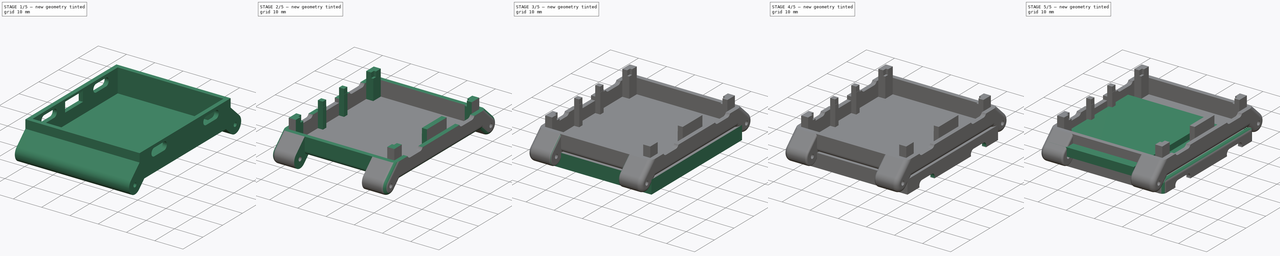
[diagram: build sequence overview — one tinted view per stage of 5, left to right]
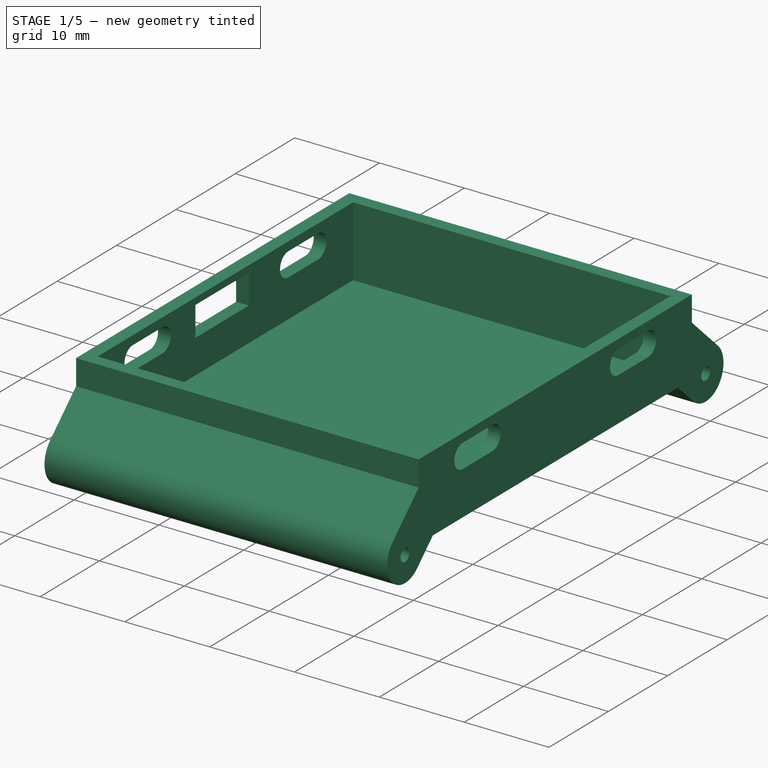
[diagram: stage 1 of 5 — iso view after this stage's code; geometry added in this stage tinted green]
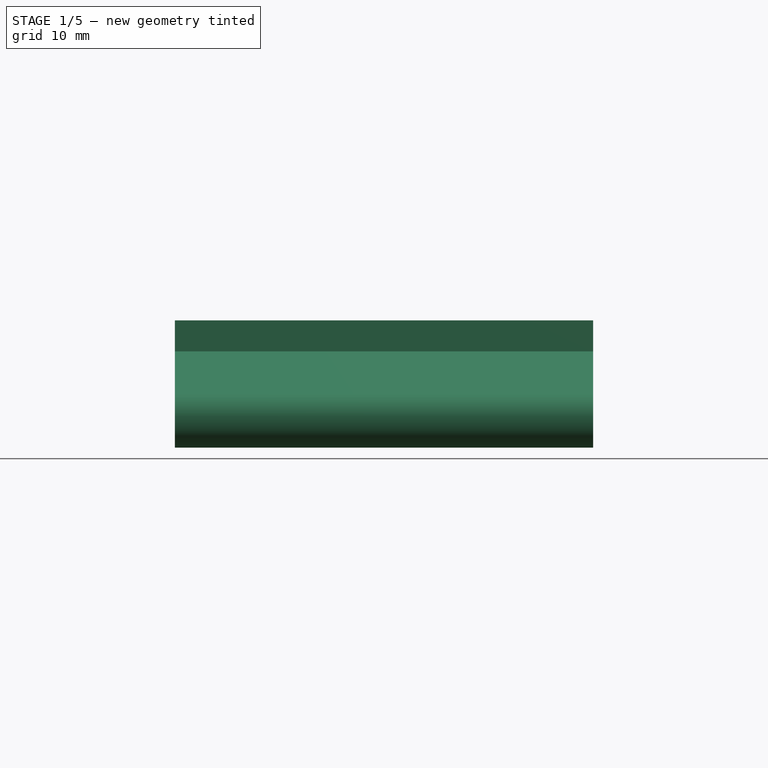
[diagram: stage 1 of 5 — front view after this stage's code; geometry added in this stage tinted green]
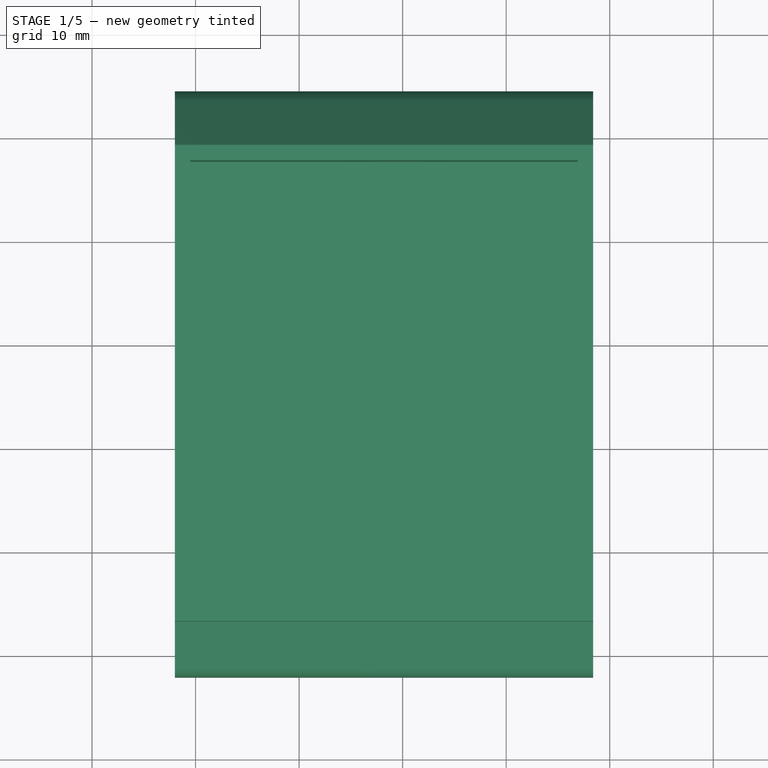
[diagram: stage 1 of 5 — top view after this stage's code; geometry added in this stage tinted green]
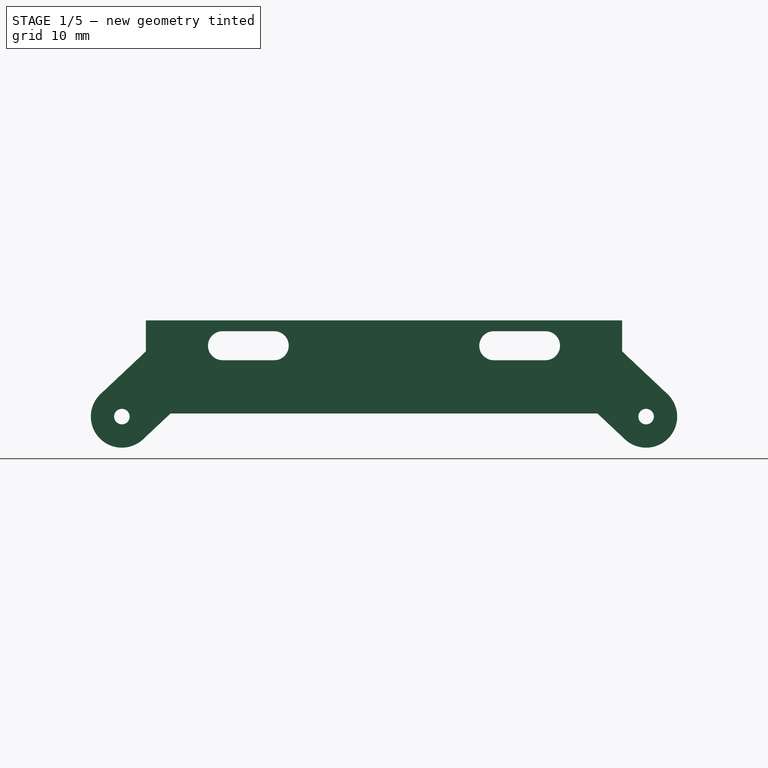
[diagram: stage 1 of 5 — right view after this stage's code; geometry added in this stage tinted green]
FCSTD DOCUMENT  (FreeCAD 1.0R39109 (Git))
Label: new-watchy-case
License: All rights reserved
LicenseURL: http://en.wikipedia.org/wiki/All_rights_reserved
objects: Part::Feature×48, App::Part×43, Sketcher::SketchObject×20, PartDesign::Pocket×13, PartDesign::Pad×6, PartDesign::Fillet×6, PartDesign::Body×4, App::LinkGroup×1, Part::Plane×1
note: 168 computed .brp shape members not serialized (recipe doc carries the construction recipe); baked Part::Feature solids carry a one-line shape summary decoded from their .brp

FEATURE [Sketcher::SketchObject] Sketch014
  ArcFitTolerance = 0
  AttachmentOffset = pos=(-2,0,0) rot=(0,0,1;0rad)
  AttachmentSupport = -> [Pocket004]
  FullyConstrained = true
  MakeInternals = false
  MapMode = 5
  Placement = pos=(-2,0,0) rot=(0,0,1;0rad)
  sketch-geometry (36):
    g0: ArcOfCircle CenterX=17.58 CenterY=9.2 CenterZ=0 NormalX=0 NormalY=0 NormalZ=1 AngleXU=0 Radius=0.25 StartAngle=1.7e-15 EndAngle=3.14159
    g1: ArcOfCircle CenterX=17.58 CenterY=5.7 CenterZ=0 NormalX=0 NormalY=0 NormalZ=1 AngleXU=0 Radius=0.25 StartAngle=3.14159 EndAngle=6.28319
    g2: LineSegment StartX=17.33 StartY=9.2 StartZ=0 EndX=17.33 EndY=5.7 EndZ=0
    g3: LineSegment StartX=17.83 StartY=5.7 StartZ=0 EndX=17.83 EndY=9.2 EndZ=0
    g4: ArcOfCircle CenterX=18.58 CenterY=9.2 CenterZ=0 NormalX=0 NormalY=0 NormalZ=1 AngleXU=0 Radius=0.25 StartAngle=-2.7e-15 EndAngle=3.14159
    g5: ArcOfCircle CenterX=18.58 CenterY=5.7 CenterZ=0 NormalX=0 NormalY=0 NormalZ=1 AngleXU=0 Radius=0.25 StartAngle=3.14159 EndAngle=6.28319
    g6: LineSegment StartX=18.33 StartY=9.2 StartZ=0 EndX=18.33 EndY=5.7 EndZ=0
    g7: LineSegment StartX=18.83 StartY=5.7 StartZ=0 EndX=18.83 EndY=9.2 EndZ=0
    g8: ArcOfCircle CenterX=19.58 CenterY=9.2 CenterZ=0 NormalX=0 NormalY=0 NormalZ=1 AngleXU=0 Radius=0.25 StartAngle=2.6e-15 EndAngle=3.14159
    g9: ArcOfCircle CenterX=19.58 CenterY=5.7 CenterZ=0 NormalX=0 NormalY=0 NormalZ=1 AngleXU=0 Radius=0.25 StartAngle=3.14159 EndAngle=6.28319
    g10: LineSegment StartX=19.33 StartY=9.2 StartZ=0 EndX=19.33 EndY=5.7 EndZ=0
    g11: LineSegment StartX=19.83 StartY=5.7 StartZ=0 EndX=19.83 EndY=9.2 EndZ=0
    g12: ArcOfCircle CenterX=20.58 CenterY=9.2 CenterZ=0 NormalX=0 NormalY=0 NormalZ=1 AngleXU=0 Radius=0.25 StartAngle=-9e-16 EndAngle=3.14159
    g13: ArcOfCircle CenterX=20.58 CenterY=5.7 CenterZ=0 NormalX=0 NormalY=0 NormalZ=1 AngleXU=0 Radius=0.25 StartAngle=3.14159 EndAngle=6.28319
    g14: LineSegment StartX=20.33 StartY=9.2 StartZ=0 EndX=20.33 EndY=5.7 EndZ=0
    g15: LineSegment StartX=20.83 StartY=5.7 StartZ=0 EndX=20.83 EndY=9.2 EndZ=0
    g16: ArcOfCircle CenterX=21.58 CenterY=9.2 CenterZ=0 NormalX=0 NormalY=0 NormalZ=1 AngleXU=0 Radius=0.25 StartAngle=-3.6e-15 EndAngle=3.14159
    g17: ArcOfCircle CenterX=21.58 CenterY=5.7 CenterZ=0 NormalX=0 NormalY=0 NormalZ=1 AngleXU=0 Radius=0.25 StartAngle=3.14159 EndAngle=6.28319
    g18: LineSegment StartX=21.33 StartY=9.2 StartZ=0 EndX=21.33 EndY=5.7 EndZ=0
    g19: LineSegment StartX=21.83 StartY=5.7 StartZ=0 EndX=21.83 EndY=9.2 EndZ=0
    g20: ArcOfCircle CenterX=22.58 CenterY=9.2 CenterZ=0 NormalX=0 NormalY=0 NormalZ=1 AngleXU=0 Radius=0.25 StartAngle=1.7e-15 EndAngle=3.14159
    g21: ArcOfCircle CenterX=22.58 CenterY=5.7 CenterZ=0 NormalX=0 NormalY=0 NormalZ=1 AngleXU=0 Radius=0.25 StartAngle=3.14159 EndAngle=6.28319
    g22: LineSegment StartX=22.33 StartY=9.2 StartZ=0 EndX=22.33 EndY=5.7 EndZ=0
    g23: LineSegment StartX=22.83 StartY=5.7 StartZ=0 EndX=22.83 EndY=9.2 EndZ=0
    g24: LineSegment StartX=0 StartY=46.5 StartZ=0 EndX=40.4 EndY=46.5 EndZ=0
    g25: LineSegment StartX=40.4 StartY=46.5 StartZ=0 EndX=40.4 EndY=46.2 EndZ=0
    g26: LineSegment StartX=40.4 StartY=46.2 StartZ=0 EndX=0 EndY=46.2 EndZ=0
    g27: LineSegment StartX=0 StartY=46.2 StartZ=0 EndX=0 EndY=46.5 EndZ=0
    g28: LineSegment StartX=0 StartY=45.7 StartZ=0 EndX=40.4 EndY=45.7 EndZ=0
    g29: LineSegment StartX=40.4 StartY=45.7 StartZ=0 EndX=40.4 EndY=45.4 EndZ=0
    g30: LineSegment StartX=40.4 StartY=45.4 StartZ=0 EndX=0 EndY=45.4 EndZ=0
    g31: LineSegment StartX=0 StartY=45.4 StartZ=0 EndX=0 EndY=45.7 EndZ=0
    g32: LineSegment StartX=0 StartY=47.3 StartZ=0 EndX=40.4 EndY=47.3 EndZ=0
    g33: LineSegment StartX=40.4 StartY=47.3 StartZ=0 EndX=40.4 EndY=47 EndZ=0
    g34: LineSegment StartX=40.4 StartY=47 StartZ=0 EndX=0 EndY=47 EndZ=0
    g35: LineSegment StartX=0 StartY=47 StartZ=0 EndX=0 EndY=47.3 EndZ=0
  constraints (96):
    c: Tangent(g0,g2) = -1.5708
    c: Tangent(g2,g1) = -1.5708
    c: Tangent(g1,g3) = -1.5708
    c: Tangent(g3,g0) = -1.5708
    c: Equal(g0,g1)
    c: Vertical(g2)
    c: Distance(g1,g-1) = 5.7
    c: Distance(g0,g1) = 3.5
    c: Distance(g0,g0) = 0.5
    c: Tangent(g4,g6) = -1.5708
    c: Tangent(g6,g5) = -1.5708
    c: Tangent(g5,g7) = -1.5708
    c: Tangent(g7,g4) = -1.5708
    c: Equal(g4,g5)
    c: Vertical(g6)
    c: Distance(g5,g-1) = 5.7
    c: Distance(g4,g5) = 3.5
    c: Distance(g4,g4) = 0.5
    c: Distance(g0,g4) = 1
    c: Tangent(g8,g10) = -1.5708
    c: Tangent(g10,g9) = -1.5708
    c: Tangent(g9,g11) = -1.5708
    c: Tangent(g11,g8) = -1.5708
    c: Equal(g8,g9)
    c: Vertical(g10)
    c: Distance(g9,g-1) = 5.7
    c: Distance(g8,g9) = 3.5
    c: Distance(g8,g8) = 0.5
    c: Distance(g4,g8) = 1
    c: Tangent(g12,g14) = -1.5708
    c: Tangent(g14,g13) = -1.5708
    c: Tangent(g13,g15) = -1.5708
    c: Tangent(g15,g12) = -1.5708
    c: Equal(g12,g13)
    c: Vertical(g14)
    c: Distance(g13,g-1) = 5.7
    c: Distance(g13,g12) = 3.5
    c: Distance(g12,g12) = 0.5
    c: Distance(g8,g12) = 1
    c: Tangent(g16,g18) = -1.5708
    c: Tangent(g18,g17) = -1.5708
    c: Tangent(g17,g19) = -1.5708
    c: Tangent(g19,g16) = -1.5708
    c: Equal(g16,g17)
    c: Vertical(g18)
    c: Distance(g16,g16) = 0.5
    c: Distance(g16,g12) = 1
    c: Distance(g16,g17) = 3.5
    c: Distance(g17,g-1) = 5.7
    c: Tangent(g20,g22) = -1.5708
    c: Tangent(g22,g21) = -1.5708
    c: Tangent(g21,g23) = -1.5708
    c: Tangent(g23,g20) = -1.5708
    c: Equal(g20,g21)
    c: Vertical(g22)
    c: Distance(g20,g20) = 0.5
    c: Distance(g16,g20) = 1
    c: Distance(g21,g-1) = 5.7
    c: Distance(g21,g20) = 3.5
    c: Distance(g1,g-2) = 17.58
    c: Coincident(g24,g25)
    c: Coincident(g25,g26)
    c: Coincident(g26,g27)
    c: Coincident(g27,g24)
    c: Horizontal(g24)
    c: Horizontal(g26)
    c: Vertical(g25)
    c: Vertical(g27)
    c: Coincident(g29,g30)
    c: Coincident(g30,g31)
    c: Coincident(g31,g28)
    c: Horizontal(g28)
    c: Horizontal(g30)
    c: Vertical(g29)
    c: Vertical(g31)
    c: Distance(g28) = 40.4
    c: Distance(g29) = 0.3
    c: Coincident(g32,g33)
    c: Coincident(g33,g34)
    c: Coincident(g34,g35)
    c: Coincident(g35,g32)
    c: Horizontal(g32)
    c: Horizontal(g34)
    c: Vertical(g33)
    c: Vertical(g35)
    c: Distance(g33) = 0.3
    c: Distance(g33,g24) = 0.5
    c: Distance(g25) = 0.3
    c: Coincident(g28,g29)
    c: Distance(g28,g-1) = 45.7
    c: Equal(g30,g26)
    c: Equal(g34,g30)
    c: PointOnObject(g30,g-2)
    c: PointOnObject(g26,g-2)
    c: PointOnObject(g34,g-2)
    c: Distance(g25,g28) = 0.5
FEATURE [Sketcher::SketchObject] Sketch003
  ArcFitTolerance = 0
  AttachmentOffset = pos=(0,0,2) rot=(0,0,1;0rad)
  AttachmentSupport = -> [YZ_Plane044]
  FullyConstrained = true
  MakeInternals = false
  MapMode = 5
  Placement = pos=(-2,0,0) rot=(0.57735,-0.57735,-0.57735;2.0944rad)
  sketch-geometry (14):
    g0: LineSegment StartX=-3.2 StartY=6 StartZ=0 EndX=1.17023 EndY=1.8889 EndZ=0
    g1: LineSegment StartX=-5.5786 StartY=0 StartZ=0 EndX=-2.94087 EndY=-2.48132 EndZ=0
    g2: ArcOfCircle CenterX=-0.885323 CenterY=-0.296211 CenterZ=0 NormalX=0 NormalY=0 NormalZ=1 AngleXU=0 Radius=3 StartAngle=3.95753 EndAngle=7.09913
    g3: LineSegment StartX=-3.2 StartY=9 StartZ=0 EndX=-49.2 EndY=9 EndZ=0
    g4: LineSegment StartX=-5.5786 StartY=0 StartZ=0 EndX=-46.8214 EndY=0 EndZ=0
    g5: LineSegment StartX=-49.2 StartY=6 StartZ=0 EndX=-53.5702 EndY=1.8889 EndZ=0
    g6: LineSegment StartX=-46.8214 StartY=0 StartZ=0 EndX=-49.4591 EndY=-2.48132 EndZ=0
    g7: ArcOfCircle CenterX=-51.5147 CenterY=-0.296211 CenterZ=0 NormalX=0 NormalY=0 NormalZ=1 AngleXU=0 Radius=3 StartAngle=2.32565 EndAngle=5.46724
    g8: Circle CenterX=-51.5147 CenterY=-0.296211 CenterZ=0 NormalX=0 NormalY=0 NormalZ=1 AngleXU=0 Radius=0.75
    g9: Circle CenterX=-0.885323 CenterY=-0.296211 CenterZ=0 NormalX=0 NormalY=0 NormalZ=1 AngleXU=0 Radius=0.75
    g10: LineSegment StartX=-49.2 StartY=9 StartZ=0 EndX=-49.2 EndY=6 EndZ=0
    g11: LineSegment StartX=-3.2 StartY=9 StartZ=0 EndX=-3.2 EndY=6 EndZ=0
    g12: LineSegment [constr] StartX=-53.5702 StartY=1.8889 StartZ=0 EndX=-49.4591 EndY=-2.48132 EndZ=0
    g13: LineSegment [constr] StartX=-2.94087 StartY=-2.48132 StartZ=0 EndX=1.17023 EndY=1.8889 EndZ=0
  constraints (40):
    c: Angle(g0,g-1) = 0.754855
    c: PointOnObject(g1,g-1)
    c: Coincident(g2,g1)
    c: Coincident(g2,g0)
    c: Diameter(g2) = 6
    c: Coincident(g4,g1)
    c: PointOnObject(g4,g-1)
    c: Distance(g3) = 46
    c: Coincident(g6,g4)
    c: Angle(g-1,g5) = 0.754855
    c: Coincident(g7,g5)
    c: Coincident(g7,g6)
    c: Diameter(g7) = 6
    c: Coincident(g8,g7)
    c: Diameter(g8) = 1.5
    c: Diameter(g9) = 1.5
    c: Parallel(g5,g6)
    c: Parallel(g3,g-1)
    c: Coincident(g10,g5)
    c: Vertical(g10)
    c: Distance(g3,g-1) = 9
    c: Distance(g3,g-2) = 3.2
    c: Parallel(g1,g0)
    c: Coincident(g10,g3)
    c: Coincident(g11,g3)
    c: Coincident(g11,g0)
    c: Vertical(g11)
    c: Coincident(g12,g5)
    c: Coincident(g12,g6)
    c: PointOnObject(g7,g12)
    c: Distance(g5) = 6
    c: Perpendicular(g6,g12)
    c: Coincident(g13,g1)
    c: Coincident(g13,g0)
    c: PointOnObject(g2,g13)
    c: Distance(g10) = 3
    c: Equal(g11,g10)
    c: Perpendicular(g0,g13)
    c: Coincident(g9,g2)
    c: Equal(g0,g5)
FEATURE [PartDesign::Pad] Pad002  label="body"
  Direction = (-1,0,0)
  Length = 40.4
  Length2 = 10
  Placement = pos=(0,0,0) rot=(1,1,1;2.0944rad)
  Profile = -> Sketch003
  ReferenceAxis = -> Sketch003 [N_Axis]
  Reversed = true
  Suppressed = false
  Type = 0
FEATURE [PartDesign::Pocket] Pocket  label="Internal hole001"
  BaseFeature = -> Pad002
  Direction = (0,0,1)
  Length = 13
  Length2 = 5
  Placement = pos=(0,0,0) rot=(1,1,1;2.0944rad)
  Profile = -> Sketch002
  ReferenceAxis = -> Sketch002 [N_Axis]
  Suppressed = false
  Type = 0
FEATURE [Sketcher::SketchObject] Sketch004
  ArcFitTolerance = 0
  AttachmentOffset = pos=(0,0,0) rot=(1,0,0;3.14159rad)
  AttachmentSupport = -> [Pocket]
  FullyConstrained = true
  MakeInternals = false
  MapMode = 5
  Placement = pos=(-2,9e-16,-4e-16) rot=(-0.57735,0.57735,0.57735;4.18879rad)
  sketch-geometry (4):
    g0: LineSegment StartX=-30.15 StartY=8.2 StartZ=0 EndX=-30.15 EndY=4.7 EndZ=0
    g1: LineSegment StartX=-30.15 StartY=4.7 StartZ=0 EndX=-21.15 EndY=4.7 EndZ=0
    g2: LineSegment StartX=-21.15 StartY=4.7 StartZ=0 EndX=-21.15 EndY=8.2 EndZ=0
    g3: LineSegment StartX=-21.15 StartY=8.2 StartZ=0 EndX=-30.15 EndY=8.2 EndZ=0
  constraints (12):
    c: Vertical(g0)
    c: Coincident(g1,g0)
    c: Horizontal(g1)
    c: Coincident(g2,g1)
    c: Vertical(g2)
    c: Distance(g0) = 3.5
    c: Distance(g1) = 9
    c: Distance(g1,g-2) = 21.15
    c: Coincident(g3,g2)
    c: Coincident(g3,g0)
    c: Horizontal(g3)
    c: Distance(g1,g-1) = 4.7
FEATURE [PartDesign::Pocket] Pocket001  label="USB hole001"
  BaseFeature = -> Pocket
  Direction = (1,0,-2e-16)
  Length = 2
  Length2 = 5
  Placement = pos=(0,0,0) rot=(1,1,1;2.0944rad)
  Profile = -> Sketch004
  ReferenceAxis = -> Sketch004 [N_Axis]
  Suppressed = false
  Type = 0
FEATURE [Sketcher::SketchObject] Sketch010
  ArcFitTolerance = 0
  AttachmentSupport = -> [Pocket001]
  FullyConstrained = true
  MakeInternals = false
  MapMode = 5
  Placement = pos=(38.4,-2.56e-14,1.28e-14) rot=(0.57735,0.57735,0.57735;2.0944rad)
  sketch-geometry (8):
    g0: ArcOfCircle CenterX=10.6 CenterY=6.55 CenterZ=0 NormalX=0 NormalY=0 NormalZ=1 AngleXU=0 Radius=1.4 StartAngle=1.5708 EndAngle=4.71239
    g1: ArcOfCircle CenterX=15.6 CenterY=6.55 CenterZ=0 NormalX=0 NormalY=0 NormalZ=1 AngleXU=0 Radius=1.4 StartAngle=4.71239 EndAngle=7.85398
    g2: LineSegment StartX=10.6 StartY=5.15 StartZ=0 EndX=15.6 EndY=5.15 EndZ=0
    g3: LineSegment StartX=15.6 StartY=7.95 StartZ=0 EndX=10.6 EndY=7.95 EndZ=0
    g4: ArcOfCircle CenterX=36.8 CenterY=6.55 CenterZ=0 NormalX=0 NormalY=0 NormalZ=1 AngleXU=0 Radius=1.4 StartAngle=1.5708 EndAngle=4.71239
    g5: ArcOfCircle CenterX=41.8 CenterY=6.55 CenterZ=0 NormalX=0 NormalY=0 NormalZ=1 AngleXU=0 Radius=1.4 StartAngle=4.71239 EndAngle=7.85398
    g6: LineSegment StartX=36.8 StartY=5.15 StartZ=0 EndX=41.8 EndY=5.15 EndZ=0
    g7: LineSegment StartX=41.8 StartY=7.95 StartZ=0 EndX=36.8 EndY=7.95 EndZ=0
  constraints (20):
    c: Tangent(g0,g2) = -1.5708
    c: Tangent(g2,g1) = -1.5708
    c: Tangent(g1,g3) = -1.5708
    c: Tangent(g3,g0) = -1.5708
    c: Equal(g0,g1)
    c: Horizontal(g2)
    c: Diameter(g0) = 2.8
    c: Distance(g0,g1) = 5
    c: Distance(g0,g-2) = 10.6
    c: Distance(g0,g-1) = 6.55
    c: Tangent(g4,g6) = -1.5708
    c: Tangent(g6,g5) = -1.5708
    c: Tangent(g5,g7) = -1.5708
    c: Tangent(g7,g4) = -1.5708
    c: Equal(g4,g5)
    c: Horizontal(g6)
    c: Diameter(g4) = 2.8
    c: Distance(g4,g5) = 5
    c: Distance(g4,g-2) = 36.8
    c: Distance(g4,g-1) = 6.55
FEATURE [PartDesign::Pocket] Pocket005  label="Button holes"
  BaseFeature = -> Pocket001
  Direction = (-1,0,0)
  Length = 2
  Length2 = 5
  Placement = pos=(0,0,0) rot=(1,1,1;2.0944rad)
  Profile = -> Sketch010
  ReferenceAxis = -> Sketch010 [N_Axis]
  Suppressed = false
  Type = 0
FEATURE [Sketcher::SketchObject] Sketch011
  ArcFitTolerance = 0
  AttachmentOffset = pos=(0,0,0) rot=(0,0,1;3.14159rad)
  AttachmentSupport = -> [Pocket005]
  FullyConstrained = true
  MakeInternals = false
  MapMode = 5
  Placement = pos=(-2,1.8e-15,-9e-16) rot=(0.57735,-0.57735,-0.57735;2.0944rad)
  sketch-geometry (8):
    g0: ArcOfCircle CenterX=-41.8 CenterY=6.55 CenterZ=0 NormalX=0 NormalY=0 NormalZ=1 AngleXU=0 Radius=1.4 StartAngle=1.5708 EndAngle=4.71239
    g1: ArcOfCircle CenterX=-36.8 CenterY=6.55 CenterZ=0 NormalX=0 NormalY=0 NormalZ=1 AngleXU=0 Radius=1.4 StartAngle=4.71239 EndAngle=7.85398
    g2: LineSegment StartX=-41.8 StartY=5.15 StartZ=0 EndX=-36.8 EndY=5.15 EndZ=0
    g3: LineSegment StartX=-36.8 StartY=7.95 StartZ=0 EndX=-41.8 EndY=7.95 EndZ=0
    g4: ArcOfCircle CenterX=-15.6 CenterY=6.55 CenterZ=0 NormalX=0 NormalY=0 NormalZ=1 AngleXU=0 Radius=1.4 StartAngle=1.5708 EndAngle=4.71239
    g5: ArcOfCircle CenterX=-10.6 CenterY=6.55 CenterZ=0 NormalX=0 NormalY=0 NormalZ=1 AngleXU=0 Radius=1.4 StartAngle=4.71239 EndAngle=7.85398
    g6: LineSegment StartX=-15.6 StartY=5.15 StartZ=0 EndX=-10.6 EndY=5.15 EndZ=0
    g7: LineSegment StartX=-10.6 StartY=7.95 StartZ=0 EndX=-15.6 EndY=7.95 EndZ=0
  constraints (20):
    c: Tangent(g0,g2) = -1.5708
    c: Tangent(g2,g1) = -1.5708
    c: Tangent(g1,g3) = -1.5708
    c: Tangent(g3,g0) = -1.5708
    c: Equal(g0,g1)
    c: Horizontal(g2)
    c: Diameter(g0) = 2.8
    c: Distance(g0,g-1) = 6.55
    c: Distance(g1,g-2) = 36.8
    c: Distance(g0,g1) = 5
    c: Tangent(g4,g6) = -1.5708
    c: Tangent(g6,g5) = -1.5708
    c: Tangent(g5,g7) = -1.5708
    c: Tangent(g7,g4) = -1.5708
    c: Equal(g4,g5)
    c: Horizontal(g6)
    c: Diameter(g5) = 2.8
    c: Distance(g4,g5) = 5
    c: Distance(g5,g-2) = 10.6
    c: Distance(g5,g-1) = 6.55
FEATURE [PartDesign::Pocket] Pocket006  label="Button holes001"
  BaseFeature = -> Pocket005
  Direction = (1,0,0)
  Length = 2
  Length2 = 5
  Placement = pos=(0,0,0) rot=(1,1,1;2.0944rad)
  Profile = -> Sketch011
  ReferenceAxis = -> Sketch011 [N_Axis]
  Suppressed = false
  Type = 0
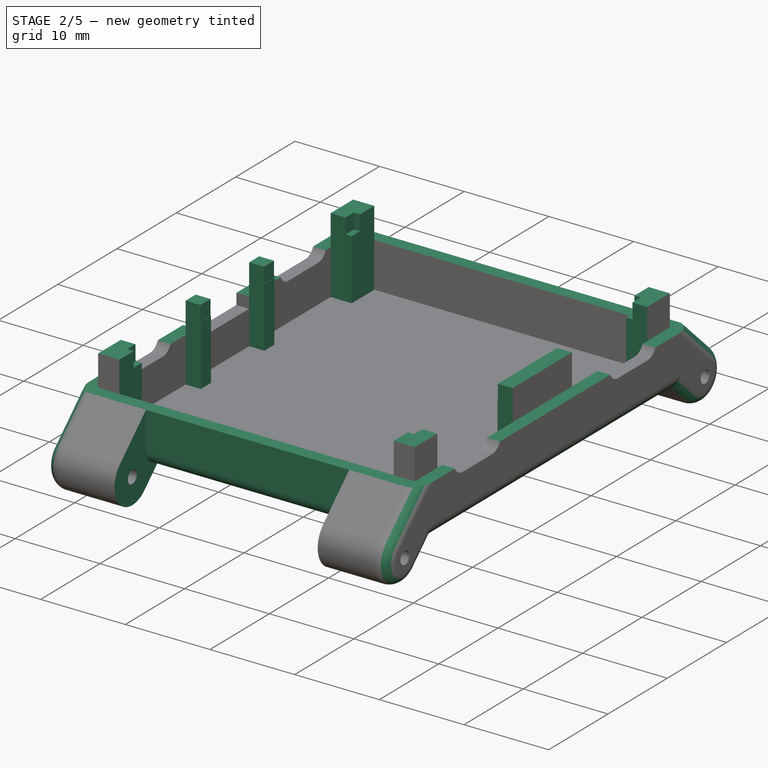
[diagram: stage 2 of 5 — iso view after this stage's code; geometry added in this stage tinted green]
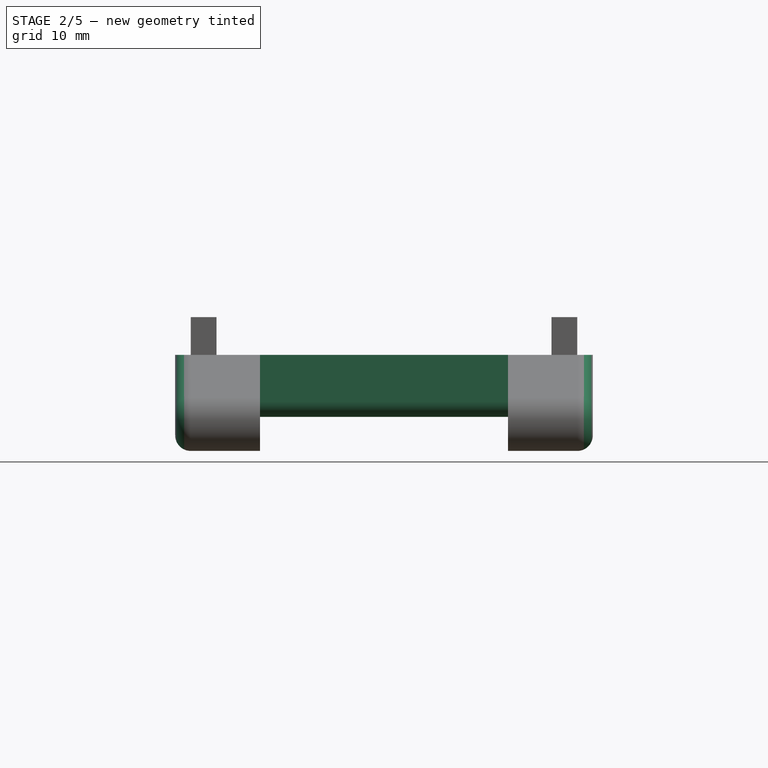
[diagram: stage 2 of 5 — front view after this stage's code; geometry added in this stage tinted green]
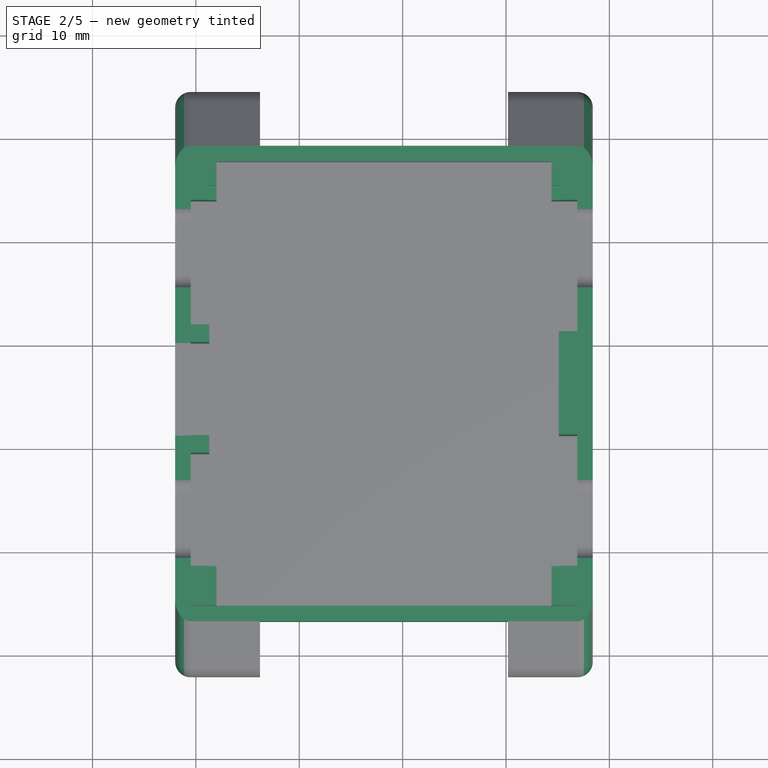
[diagram: stage 2 of 5 — top view after this stage's code; geometry added in this stage tinted green]
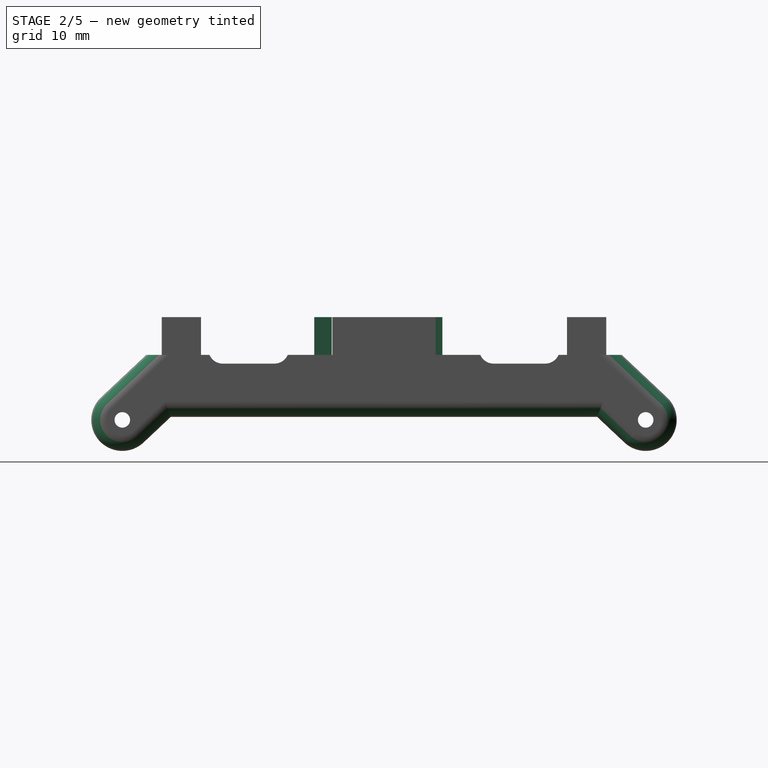
[diagram: stage 2 of 5 — right view after this stage's code; geometry added in this stage tinted green]
FEATURE [Sketcher::SketchObject] Sketch015
  ArcFitTolerance = 0
  AttachmentSupport = -> [Pocket006]
  FullyConstrained = true
  MakeInternals = false
  MapMode = 5
  Placement = pos=(-1.3e-14,7e-15,9) rot=(0,0,-1;1.5708rad)
  sketch-geometry (4):
    g0: LineSegment StartX=-3.2 StartY=-2 StartZ=0 EndX=-49.2 EndY=-2 EndZ=0
    g1: LineSegment StartX=-49.2 StartY=-2 StartZ=0 EndX=-49.2 EndY=38.4 EndZ=0
    g2: LineSegment StartX=-49.2 StartY=38.4 StartZ=0 EndX=-3.2 EndY=38.4 EndZ=0
    g3: LineSegment StartX=-3.2 StartY=38.4 StartZ=0 EndX=-3.2 EndY=-2 EndZ=0
  constraints (12):
    c: Coincident(g0,g1)
    c: Coincident(g1,g2)
    c: Coincident(g2,g3)
    c: Coincident(g3,g0)
    c: Horizontal(g0)
    c: Horizontal(g2)
    c: Vertical(g1)
    c: Vertical(g3)
    c: Distance(g2) = 46
    c: Distance(g1) = 40.4
    c: Distance(g0,g-1) = 2
    c: Distance(g0,g-2) = 3.2
FEATURE [PartDesign::Pocket] Pocket010
  BaseFeature = -> Pocket006
  Direction = (1.4e-15,0,-1)
  Length = 3
  Length2 = 5
  Placement = pos=(0,0,0) rot=(1,1,1;2.0944rad)
  Profile = -> Sketch015
  ReferenceAxis = -> Sketch015 [N_Axis]
  Suppressed = false
  Type = 0
FEATURE [Sketcher::SketchObject] Sketch018
  ArcFitTolerance = 0
  AttachmentSupport = -> [Pocket001]
  FullyConstrained = true
  MakeInternals = false
  MapMode = 5
  Placement = pos=(-5e-16,2e-16,0.7) rot=(0,0,-1;1.5708rad)
  sketch-geometry (28):
    g0: LineSegment StartX=-47.7 StartY=-0.5 StartZ=0 EndX=-43.9 EndY=-0.5 EndZ=0
    g1: LineSegment StartX=-43.9 StartY=-0.5 StartZ=0 EndX=-43.9 EndY=2 EndZ=0
    g2: LineSegment StartX=-43.9 StartY=2 StartZ=0 EndX=-47.7 EndY=2 EndZ=0
    g3: LineSegment StartX=-47.7 StartY=2 StartZ=0 EndX=-47.7 EndY=-0.5 EndZ=0
    g4: LineSegment StartX=-4.7 StartY=-0.5 StartZ=0 EndX=-8.5 EndY=-0.5 EndZ=0
    g5: LineSegment StartX=-8.5 StartY=-0.5 StartZ=0 EndX=-8.5 EndY=2 EndZ=0
    g6: LineSegment StartX=-8.5 StartY=2 StartZ=0 EndX=-4.7 EndY=2 EndZ=0
    g7: LineSegment StartX=-4.7 StartY=2 StartZ=0 EndX=-4.7 EndY=-0.5 EndZ=0
    g8: LineSegment StartX=-4.7 StartY=36.9 StartZ=0 EndX=-8.5 EndY=36.9 EndZ=0
    g9: LineSegment StartX=-8.5 StartY=36.9 StartZ=0 EndX=-8.5 EndY=34.4 EndZ=0
    g10: LineSegment StartX=-8.5 StartY=34.4 StartZ=0 EndX=-4.7 EndY=34.4 EndZ=0
    g11: LineSegment StartX=-4.7 StartY=34.4 StartZ=0 EndX=-4.7 EndY=36.9 EndZ=0
    g12: LineSegment StartX=-47.7 StartY=36.9 StartZ=0 EndX=-43.9 EndY=36.9 EndZ=0
    g13: LineSegment StartX=-43.9 StartY=36.9 StartZ=0 EndX=-43.9 EndY=34.4 EndZ=0
    g14: LineSegment StartX=-43.9 StartY=34.4 StartZ=0 EndX=-47.7 EndY=34.4 EndZ=0
    g15: LineSegment StartX=-47.7 StartY=34.4 StartZ=0 EndX=-47.7 EndY=36.9 EndZ=0
    g16: LineSegment StartX=-31.2 StartY=35.1 StartZ=0 EndX=-21.2 EndY=35.1 EndZ=0
    g17: LineSegment StartX=-21.2 StartY=35.1 StartZ=0 EndX=-21.2 EndY=36.9 EndZ=0
    g18: LineSegment StartX=-21.2 StartY=36.9 StartZ=0 EndX=-31.2 EndY=36.9 EndZ=0
    g19: LineSegment StartX=-31.2 StartY=36.9 StartZ=0 EndX=-31.2 EndY=35.1 EndZ=0
    g20: LineSegment StartX=-21.15 StartY=-0.5 StartZ=0 EndX=-19.45 EndY=-0.5 EndZ=0
    g21: LineSegment StartX=-19.45 StartY=-0.5 StartZ=0 EndX=-19.45 EndY=1.3 EndZ=0
    g22: LineSegment StartX=-19.45 StartY=1.3 StartZ=0 EndX=-21.15 EndY=1.3 EndZ=0
    g23: LineSegment StartX=-21.15 StartY=1.3 StartZ=0 EndX=-21.15 EndY=-0.5 EndZ=0
    g24: LineSegment StartX=-30.15 StartY=-0.5 StartZ=0 EndX=-31.85 EndY=-0.5 EndZ=0
    g25: LineSegment StartX=-31.85 StartY=-0.5 StartZ=0 EndX=-31.85 EndY=1.3 EndZ=0
    g26: LineSegment StartX=-31.85 StartY=1.3 StartZ=0 EndX=-30.15 EndY=1.3 EndZ=0
    g27: LineSegment StartX=-30.15 StartY=1.3 StartZ=0 EndX=-30.15 EndY=-0.5 EndZ=0
  constraints (84):
    c: Coincident(g0,g1)
    c: Coincident(g1,g2)
    c: Coincident(g2,g3)
    c: Coincident(g3,g0)
    c: Horizontal(g0)
    c: Horizontal(g2)
    c: Vertical(g1)
    c: Vertical(g3)
    c: Distance(g0,g-2) = 43.9
    c: Coincident(g4,g5)
    c: Coincident(g5,g6)
    c: Coincident(g6,g7)
    c: Coincident(g7,g4)
    c: Horizontal(g4)
    c: Horizontal(g6)
    c: Vertical(g5)
    c: Vertical(g7)
    c: Distance(g6) = 3.8
    c: Distance(g5) = 2.5
    c: Distance(g4,g-2) = 4.7
    c: Coincident(g8,g9)
    c: Coincident(g9,g10)
    c: Coincident(g10,g11)
    c: Coincident(g11,g8)
    c: Horizontal(g8)
    c: Horizontal(g10)
    c: Vertical(g9)
    c: Vertical(g11)
    c: Distance(g9) = 2.5
    c: Distance(g10) = 3.8
    c: Distance(g10,g-2) = 4.7
    c: Distance(g10,g-1) = 34.4
    c: Coincident(g12,g13)
    c: Coincident(g13,g14)
    c: Coincident(g14,g15)
    c: Coincident(g15,g12)
    c: Horizontal(g12)
    c: Horizontal(g14)
    c: Vertical(g13)
    c: Vertical(g15)
    c: Distance(g14) = 3.8
    c: Distance(g13) = 2.5
    c: Distance(g13,g-1) = 34.4
    c: Distance(g12,g-2) = 43.9
    c: Distance(g1) = 2.5
    c: Distance(g2) = 3.8
    c: Coincident(g16,g17)
    c: Coincident(g17,g18)
    c: Coincident(g18,g19)
    c: Coincident(g19,g16)
    c: Horizontal(g16)
    c: Horizontal(g18)
    c: Vertical(g17)
    c: Vertical(g19)
    c: Distance(g16) = 10
    c: Distance(g16,g-2) = 21.2
    c: Distance(g17,g-1) = 36.9
    c: Distance(g17) = 1.8
    c: Coincident(g20,g21)
    c: Coincident(g21,g22)
    c: Coincident(g22,g23)
    c: Coincident(g23,g20)
    c: Horizontal(g20)
    c: Horizontal(g22)
    c: Vertical(g21)
    c: Vertical(g23)
    c: Distance(g21) = 1.8
    c: Distance(g20,g-2) = 19.45
    c: Distance(g20,g-1) = 0.5
    c: Coincident(g24,g25)
    c: Coincident(g25,g26)
    c: Coincident(g26,g27)
    c: Coincident(g27,g24)
    c: Horizontal(g24)
    c: Horizontal(g26)
    c: Vertical(g25)
    c: Vertical(g27)
    c: Distance(g27) = 1.8
    c: Distance(g22) = 1.7
    c: Distance(g26) = 1.7
    c: Distance(g26,g-2) = 30.15
    c: Distance(g24,g-1) = 0.5
    c: Distance(g0,g-1) = 0.5
    c: Distance(g4,g-1) = 0.5
FEATURE [PartDesign::Pad] Pad004
  BaseFeature = -> Pocket010
  Direction = (0,0,1)
  Length = 8.95
  Length2 = 10
  Placement = pos=(0,0,0) rot=(1,1,1;2.0944rad)
  Profile = -> Sketch018
  ReferenceAxis = -> Sketch018 [N_Axis]
  Suppressed = false
  Type = 0
FEATURE [Sketcher::SketchObject] Sketch020
  ArcFitTolerance = 0
  AttachmentSupport = -> [Pad004]
  FullyConstrained = true
  MakeInternals = false
  MapMode = 5
  Placement = pos=(-3.2e-15,1.1e-15,9.65) rot=(0,0,-1;1.5708rad)
  sketch-geometry (4):
    g0: LineSegment StartX=-45.3 StartY=35.15 StartZ=0 EndX=-45.3 EndY=1.25 EndZ=0
    g1: LineSegment StartX=-45.3 StartY=1.25 StartZ=0 EndX=-7.1 EndY=1.25 EndZ=0
    g2: LineSegment StartX=-7.1 StartY=1.25 StartZ=0 EndX=-7.1 EndY=35.15 EndZ=0
    g3: LineSegment StartX=-7.1 StartY=35.15 StartZ=0 EndX=-45.3 EndY=35.15 EndZ=0
  constraints (12):
    c: Coincident(g0,g1)
    c: Coincident(g1,g2)
    c: Coincident(g2,g3)
    c: Coincident(g3,g0)
    c: Vertical(g0)
    c: Vertical(g2)
    c: Horizontal(g1)
    c: Horizontal(g3)
    c: DistanceX(g3,g3) = 38.2
    c: DistanceY(g0,g0) = 33.9
    c: DistanceX(g2,g-1) = 7.1
    c: DistanceY(g-1,g1) = 1.25
FEATURE [PartDesign::Pocket] Pocket013
  BaseFeature = -> Pad004
  Direction = (0,0,-1)
  Length = 1.8
  Length2 = 5
  Placement = pos=(0,0,0) rot=(1,1,1;2.0944rad)
  Profile = -> Sketch020
  ReferenceAxis = -> Sketch020 [N_Axis]
  Suppressed = false
  Type = 0
FEATURE [Sketcher::SketchObject] Sketch021
  ArcFitTolerance = 0
  AttachmentOffset = pos=(0,0,-8.2) rot=(0,0,1;0rad)
  AttachmentSupport = -> [Pocket010]
  FullyConstrained = true
  MakeInternals = false
  MapMode = 5
  Placement = pos=(30.2,-4.02e-14,2.56e-14) rot=(0.57735,0.57735,0.57735;2.0944rad)
  sketch-geometry (12):
    g0: LineSegment StartX=3.2 StartY=6 StartZ=0 EndX=3.2 EndY=0 EndZ=0
    g1: LineSegment StartX=3.2 StartY=0 StartZ=0 EndX=5.8 EndY=0 EndZ=0
    g2: LineSegment StartX=5.8 StartY=0 StartZ=0 EndX=5.8 EndY=-5.6 EndZ=0
    g3: LineSegment StartX=5.8 StartY=-5.6 StartZ=0 EndX=-3.95 EndY=-5.6 EndZ=0
    g4: LineSegment StartX=-3.95 StartY=-5.6 StartZ=0 EndX=-3.95 EndY=6 EndZ=0
    g5: LineSegment StartX=-3.95 StartY=6 StartZ=0 EndX=3.2 EndY=6 EndZ=0
    g6: LineSegment StartX=49.2 StartY=6 StartZ=0 EndX=49.2 EndY=0 EndZ=0
    g7: LineSegment StartX=49.2 StartY=0 StartZ=0 EndX=46.6 EndY=0 EndZ=0
    g8: LineSegment StartX=46.6 StartY=0 StartZ=0 EndX=46.6 EndY=-6.2 EndZ=0
    g9: LineSegment StartX=46.6 StartY=-6.2 StartZ=0 EndX=57 EndY=-6.2 EndZ=0
    g10: LineSegment StartX=57 StartY=-6.2 StartZ=0 EndX=57 EndY=6 EndZ=0
    g11: LineSegment StartX=57 StartY=6 StartZ=0 EndX=49.2 EndY=6 EndZ=0
  constraints (36):
    c: PointOnObject(g0,g-1)
    c: Vertical(g0)
    c: Coincident(g1,g0)
    c: PointOnObject(g1,g-1)
    c: Coincident(g2,g1)
    c: Vertical(g2)
    c: Coincident(g3,g2)
    c: Horizontal(g3)
    c: Coincident(g4,g3)
    c: Vertical(g4)
    c: Coincident(g5,g4)
    c: Coincident(g5,g0)
    c: Horizontal(g5)
    c: PointOnObject(g6,g-1)
    c: Vertical(g6)
    c: Coincident(g7,g6)
    c: PointOnObject(g7,g-1)
    c: Coincident(g8,g7)
    c: Vertical(g8)
    c: Coincident(g9,g8)
    c: Horizontal(g9)
    c: Coincident(g10,g9)
    c: Vertical(g10)
    c: Coincident(g11,g10)
    c: Coincident(g11,g6)
    c: Horizontal(g11)
    c: Distance(g0,g-2) = 3.2
    c: Distance(g0,g-1) = 6
    c: Distance(g1,g-2) = 5.8
    c: Distance(g2) = 5.6
    c: Distance(g3) = 9.75
    c: Distance(g6,g-2) = 49.2
    c: Distance(g7,g-2) = 46.6
    c: Distance(g10) = 12.2
    c: Distance(g9) = 10.4
    c: Distance(g9,g-1) = 6.2
FEATURE [PartDesign::Pocket] Pocket015
  BaseFeature = -> Pocket013
  Direction = (-1,1.3e-15,0)
  Length = 24
  Length2 = 5
  Placement = pos=(0,0,0) rot=(1,1,1;2.0944rad)
  Profile = -> Sketch021
  ReferenceAxis = -> Sketch021 [N_Axis]
  Suppressed = false
  Type = 0
FEATURE [PartDesign::Body] Body003  label="Top case"
  AllowCompound = false
  Group = -> [Sketch005,Pad003,Sketch006,Pocket002,Sketch007,Pocket003,Sketch008,Pocket004,Sketch012,Pocket007,Sketch013,Pocket008,Sketch024,Pad006,Fillet,Fillet001,Fillet002,Fillet003,Sketch014,Pocket016]
  Origin = -> Origin046
  Placement = pos=(0,0,11.69) rot=(0,0,1;0rad)
  Tip = -> Pocket016
FEATURE [PartDesign::Fillet] Fillet004
  Base = -> Pocket015 [Edge99,Edge187,Edge21,Edge22,Edge23,Edge1,Edge139,Edge138,Edge137,Edge90,Edge136,Edge135,Edge134,Edge20,Edge19,Edge18]
  BaseFeature = -> Pocket015
  Placement = pos=(0,0,0) rot=(1,1,1;2.0944rad)
  Radius = 1.5
  SupportTransform = false
  Suppressed = false
  UseAllEdges = false
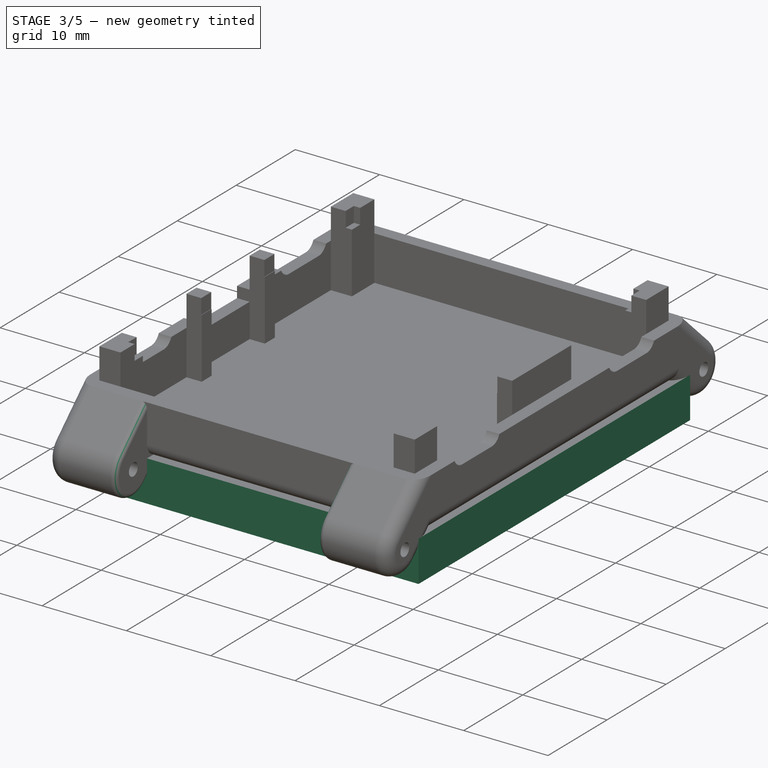
[diagram: stage 3 of 5 — iso view after this stage's code; geometry added in this stage tinted green]
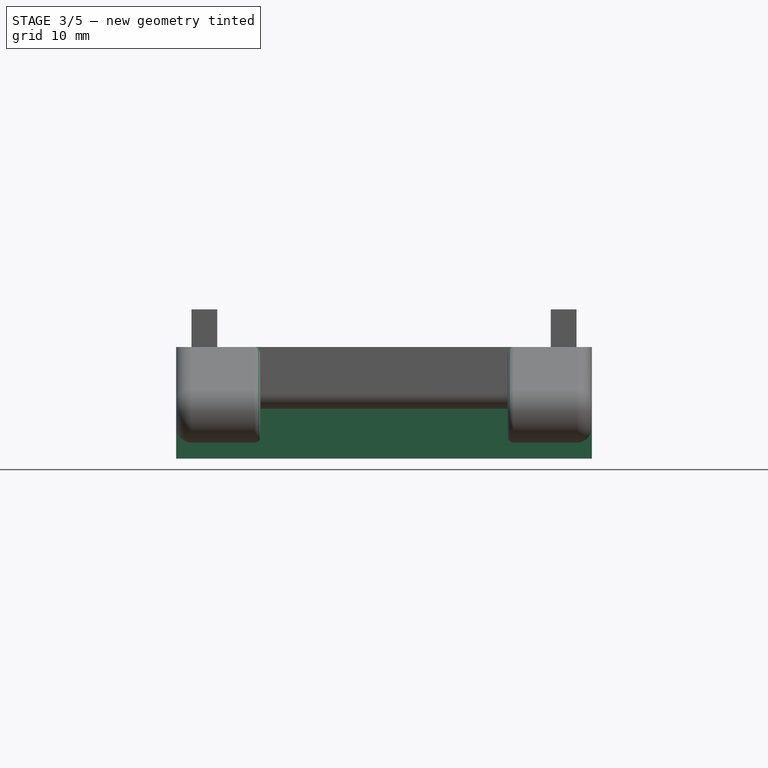
[diagram: stage 3 of 5 — front view after this stage's code; geometry added in this stage tinted green]
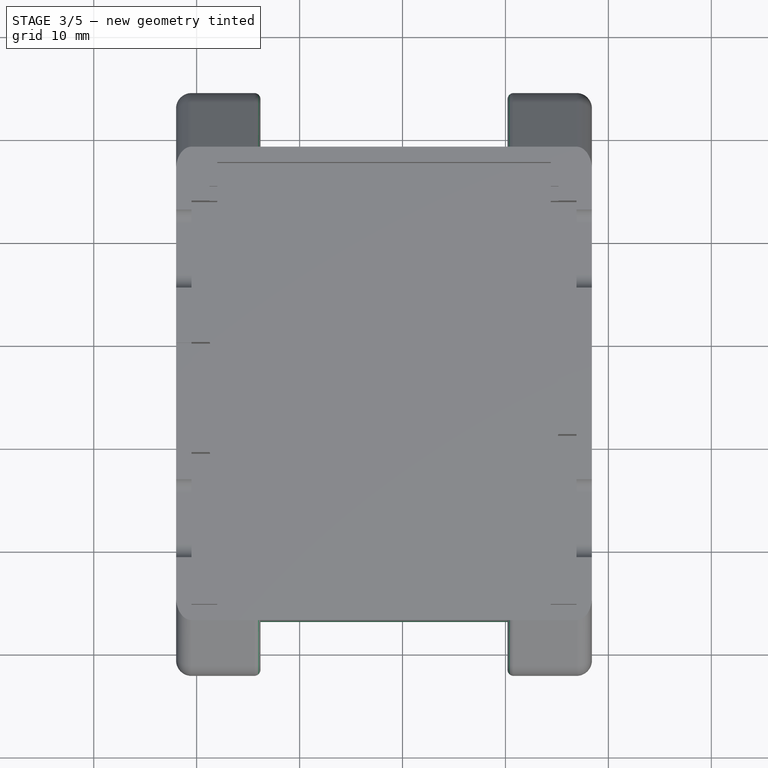
[diagram: stage 3 of 5 — top view after this stage's code; geometry added in this stage tinted green]
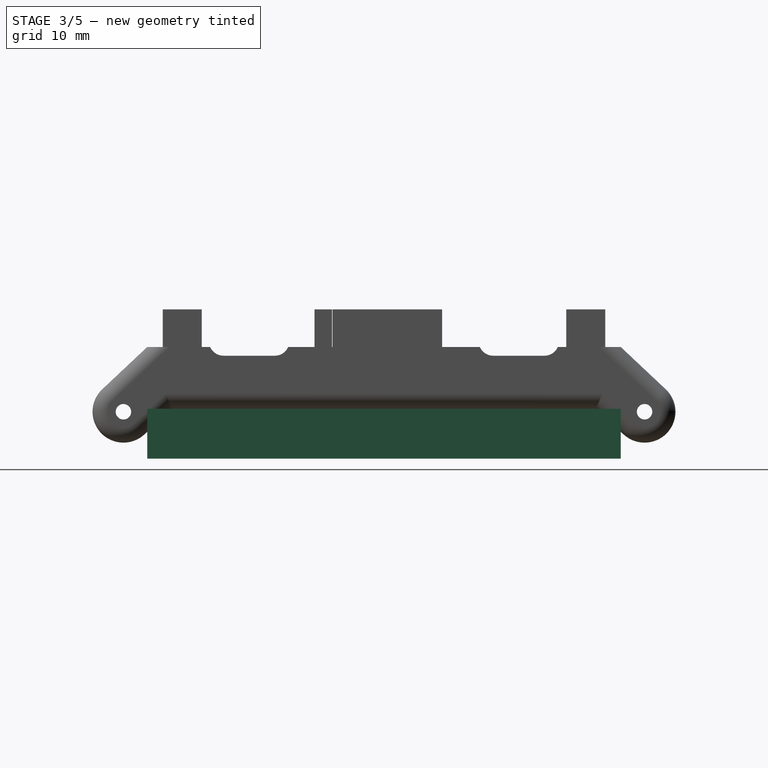
[diagram: stage 3 of 5 — right view after this stage's code; geometry added in this stage tinted green]
FEATURE [PartDesign::Body] Body001  label="Screen"
  AllowCompound = false
  Group = -> [Sketch001,Pad001]
  Origin = -> Origin043
  Placement = pos=(0,0,0.9) rot=(0,0,1;0rad)
  Tip = -> Pad001
FEATURE [App::LinkGroup] LinkGroup  label="Watchy"
  ElementList = -> [Body,Watchy_1,Body001]
  LinkMode = 0
  Placement = pos=(1.1,2.5,8.19) rot=(0,0,1;0rad)
FEATURE [Sketcher::SketchObject] Sketch002
  ArcFitTolerance = 0
  AttachmentOffset = pos=(0,0,-0.7) rot=(0,0,1;0rad)
  AttachmentSupport = -> [XY_Plane044]
  FullyConstrained = true
  MakeInternals = false
  MapMode = 5
  Placement = pos=(0,0,0.7) rot=(0,1,0;3.14159rad)
  sketch-geometry (4):
    g0: LineSegment StartX=0.5 StartY=4.7 StartZ=0 EndX=-36.9 EndY=4.7 EndZ=0
    g1: LineSegment StartX=-36.9 StartY=4.7 StartZ=0 EndX=-36.9 EndY=47.7 EndZ=0
    g2: LineSegment StartX=-36.9 StartY=47.7 StartZ=0 EndX=0.5 EndY=47.7 EndZ=0
    g3: LineSegment StartX=0.5 StartY=47.7 StartZ=0 EndX=0.5 EndY=4.7 EndZ=0
  constraints (12):
    c: Coincident(g0,g1)
    c: Coincident(g1,g2)
    c: Coincident(g2,g3)
    c: Coincident(g3,g0)
    c: Horizontal(g0)
    c: Horizontal(g2)
    c: Vertical(g1)
    c: Vertical(g3)
    c: Distance(g2) = 37.4
    c: Distance(g3) = 43
    c: Distance(g0,g-2) = 0.5
    c: Distance(g-1,g0) = 4.7
FEATURE [Part::Feature] Part__Feature042  label="button"
  shape: bbox 3.8 x 11.9 x 4.8 mm, 18 faces (baked)
FEATURE [Part::Feature] Part__Feature043  label="button001"
  Placement = pos=(-4e-15,-26.4,0) rot=(0,0,1;0rad)
  shape: bbox 3.8 x 11.9 x 4.8 mm, 18 faces (baked)
FEATURE [Part::Feature] Part__Feature044  label="button002"
  Placement = pos=(33.8,45.96,0) rot=(0,0,1;3.14159rad)
  shape: bbox 3.8 x 11.9 x 4.8 mm, 18 faces (baked)
FEATURE [Part::Feature] Part__Feature045  label="button003"
  Placement = pos=(33.8,72.36,0) rot=(0,0,1;3.14159rad)
  shape: bbox 3.8 x 11.9 x 4.8 mm, 18 faces (baked)
FEATURE [Part::Feature] Part__Feature046  label="TOP"
  shape: bbox 39.61 x 49.79 x 6.741 mm, 292 faces (baked)
FEATURE [Part::Feature] Part__Feature047  label="Bottom"
  shape: bbox 39.6 x 49.22 x 10.1 mm, 219 faces (baked)
FEATURE [Sketcher::SketchObject] Sketch005
  ArcFitTolerance = 0
  AttachmentSupport = -> [XY_Plane046]
  FullyConstrained = true
  MakeInternals = false
  MapMode = 5
  sketch-geometry (4):
    g0: LineSegment StartX=-2 StartY=3.2 StartZ=0 EndX=38.4 EndY=3.2 EndZ=0
    g1: LineSegment StartX=38.4 StartY=3.2 StartZ=0 EndX=38.4 EndY=49.2 EndZ=0
    g2: LineSegment StartX=38.4 StartY=49.2 StartZ=0 EndX=-2 EndY=49.2 EndZ=0
    g3: LineSegment StartX=-2 StartY=49.2 StartZ=0 EndX=-2 EndY=3.2 EndZ=0
  constraints (12):
    c: Coincident(g0,g1)
    c: Coincident(g1,g2)
    c: Coincident(g2,g3)
    c: Coincident(g3,g0)
    c: Horizontal(g0)
    c: Horizontal(g2)
    c: Vertical(g1)
    c: Vertical(g3)
    c: Distance(g0) = 40.4
    c: Distance(g1) = 46
    c: Distance(g0,g-1) = 3.2
    c: Distance(g0,g-2) = 2
FEATURE [PartDesign::Pad] Pad003
  Direction = (0,0,1)
  Length = 4.85
  Length2 = 10
  Profile = -> Sketch005
  ReferenceAxis = -> Sketch005 [N_Axis]
  Reversed = true
  Suppressed = false
  Type = 0
FEATURE [Sketcher::SketchObject] Sketch006
  ArcFitTolerance = 0
  AttachmentSupport = -> [Pad003]
  FullyConstrained = true
  MakeInternals = false
  MapMode = 5
  Placement = pos=(-2,0,0) rot=(0.57735,-0.57735,-0.57735;2.0944rad)
  sketch-geometry (4):
    g0: LineSegment StartX=-30.15 StartY=-4.85 StartZ=0 EndX=-21.15 EndY=-4.85 EndZ=0
    g1: LineSegment StartX=-21.15 StartY=-4.85 StartZ=0 EndX=-21.15 EndY=-3.45 EndZ=0
    g2: LineSegment StartX=-21.15 StartY=-3.45 StartZ=0 EndX=-30.15 EndY=-3.45 EndZ=0
    g3: LineSegment StartX=-30.15 StartY=-3.45 StartZ=0 EndX=-30.15 EndY=-4.85 EndZ=0
  constraints (12):
    c: Coincident(g0,g1)
    c: Coincident(g1,g2)
    c: Coincident(g2,g3)
    c: Coincident(g3,g0)
    c: Horizontal(g0)
    c: Horizontal(g2)
    c: Vertical(g1)
    c: Vertical(g3)
    c: Distance(g1) = 1.4
    c: Distance(g2) = 9
    c: Distance(g1,g-1) = 3.45
    c: Distance(g1,g-2) = 21.15
FEATURE [PartDesign::Pocket] Pocket002  label="USB hole"
  BaseFeature = -> Pad003
  Direction = (1,0,0)
  Length = 2
  Length2 = 5
  Profile = -> Sketch006
  ReferenceAxis = -> Sketch006 [N_Axis]
  Suppressed = false
  Type = 0
FEATURE [Sketcher::SketchObject] Sketch007
  ArcFitTolerance = 0
  AttachmentOffset = pos=(0,0,-0.8) rot=(0,0,1;0rad)
  AttachmentSupport = -> [XY_Plane046]
  FullyConstrained = true
  MakeInternals = false
  MapMode = 5
  Placement = pos=(0,0,-0.8) rot=(0,0,1;0rad)
  sketch-geometry (4):
    g0: LineSegment StartX=-0.5 StartY=4.7 StartZ=0 EndX=36.9 EndY=4.7 EndZ=0
    g1: LineSegment StartX=36.9 StartY=4.7 StartZ=0 EndX=36.9 EndY=47.7 EndZ=0
    g2: LineSegment StartX=36.9 StartY=47.7 StartZ=0 EndX=-0.5 EndY=47.7 EndZ=0
    g3: LineSegment StartX=-0.5 StartY=47.7 StartZ=0 EndX=-0.5 EndY=4.7 EndZ=0
  constraints (12):
    c: Coincident(g0,g1)
    c: Coincident(g1,g2)
    c: Coincident(g2,g3)
    c: Coincident(g3,g0)
    c: Horizontal(g0)
    c: Horizontal(g2)
    c: Vertical(g1)
    c: Vertical(g3)
    c: Distance(g0,g-1) = 4.7
    c: Distance(g0,g-2) = 0.5
    c: Distance(g0) = 37.4
    c: Distance(g1) = 43
FEATURE [PartDesign::Pocket] Pocket003  label="Internal hole"
  BaseFeature = -> Pocket002
  Direction = (0,0,-1)
  Length = 4.3
  Length2 = 5
  Profile = -> Sketch007
  ReferenceAxis = -> Sketch007 [N_Axis]
  Suppressed = false
  Type = 0
FEATURE [Sketcher::SketchObject] Sketch008
  ArcFitTolerance = 0
  AttachmentSupport = -> [Pocket003]
  FullyConstrained = true
  MakeInternals = false
  MapMode = 5
  sketch-geometry (16):
    g0: ArcOfCircle CenterX=31.2 CenterY=16.45 CenterZ=0 NormalX=0 NormalY=0 NormalZ=1 AngleXU=0 Radius=1 StartAngle=4.71239 EndAngle=6.28319
    g1: ArcOfCircle CenterX=31.2 CenterY=42.45 CenterZ=0 NormalX=0 NormalY=0 NormalZ=1 AngleXU=0 Radius=1 StartAngle=1.8e-15 EndAngle=1.5708
    g2: LineSegment StartX=32.2 StartY=42.45 StartZ=0 EndX=32.2 EndY=16.45 EndZ=0
    g3: ArcOfCircle CenterX=5.2 CenterY=42.45 CenterZ=0 NormalX=0 NormalY=0 NormalZ=1 AngleXU=0 Radius=1 StartAngle=1.5708 EndAngle=3.14159
    g4: LineSegment StartX=5.2 StartY=43.45 StartZ=0 EndX=31.2 EndY=43.45 EndZ=0
    g5: ArcOfCircle CenterX=5.2 CenterY=16.45 CenterZ=0 NormalX=0 NormalY=0 NormalZ=1 AngleXU=0 Radius=1 StartAngle=3.14159 EndAngle=4.71239
    g6: LineSegment StartX=4.2 StartY=16.45 StartZ=0 EndX=4.2 EndY=42.45 EndZ=0
    g7: LineSegment StartX=5.2 StartY=15.45 StartZ=0 EndX=31.2 EndY=15.45 EndZ=0
    g8: LineSegment [constr] StartX=5.2 StartY=16.45 StartZ=0 EndX=31.2 EndY=16.45 EndZ=0
    g9: LineSegment [constr] StartX=31.2 StartY=16.45 StartZ=0 EndX=31.2 EndY=42.45 EndZ=0
    g10: LineSegment [constr] StartX=31.2 StartY=42.45 StartZ=0 EndX=5.2 EndY=42.45 EndZ=0
    g11: LineSegment [constr] StartX=5.2 StartY=42.45 StartZ=0 EndX=5.2 EndY=16.45 EndZ=0
    g12: LineSegment [constr] StartX=31.2 StartY=16.45 StartZ=0 EndX=32.2 EndY=16.45 EndZ=0
    g13: LineSegment [constr] StartX=4.2 StartY=16.45 StartZ=0 EndX=5.2 EndY=16.45 EndZ=0
    g14: LineSegment [constr] StartX=4.2 StartY=42.45 StartZ=0 EndX=5.2 EndY=42.45 EndZ=0
    g15: LineSegment [constr] StartX=32.2 StartY=42.45 StartZ=0 EndX=31.2 EndY=42.45 EndZ=0
  constraints (46):
    c: Diameter(g0) = 2
    c: Diameter(g1) = 2
    c: Vertical(g2)
    c: Diameter(g3) = 2
    c: Coincident(g4,g3)
    c: Coincident(g4,g1)
    c: Horizontal(g4)
    c: Diameter(g5) = 2
    c: Coincident(g6,g5)
    c: Coincident(g6,g3)
    c: Vertical(g6)
    c: Coincident(g7,g5)
    c: Coincident(g7,g0)
    c: Horizontal(g7)
    c: Coincident(g2,g0)
    c: Coincident(g1,g2)
    c: Angle(g0) = 1.5708
    c: Angle(g5) = 1.5708
    c: Angle(g3) = 1.5708
    c: Angle(g1) = 1.5708
    c: Coincident(g8,g9)
    c: Coincident(g9,g10)
    c: Coincident(g10,g11)
    c: Coincident(g11,g8)
    c: Horizontal(g8)
    c: Horizontal(g10)
    c: Vertical(g9)
    c: Vertical(g11)
    c: Coincident(g8,g5)
    c: Coincident(g9,g1)
    c: Distance(g11) = 26
    c: Distance(g10) = 26
    c: Coincident(g12,g0)
    c: Coincident(g12,g0)
    c: Horizontal(g12)
    c: Coincident(g13,g5)
    c: Coincident(g13,g5)
    c: Horizontal(g13)
    c: Coincident(g14,g3)
    c: Coincident(g14,g3)
    c: Horizontal(g14)
    c: Coincident(g15,g1)
    c: Coincident(g15,g1)
    c: Horizontal(g15)
    c: Distance(g5,g-2) = 5.2
    c: Distance(g5,g-1) = 16.45
FEATURE [Part::Plane] Plane
  AttacherType = Attacher::AttachEngine3D
  Length = 50
  Placement = pos=(-11.04,-4.8,-3.5) rot=(0,0,1;0rad)
  Width = 50
FEATURE [App::Part] WATCHY_MOLD_Gameboy_v3  label="WATCHY_MOLD_Gameboy v3"
  Group = -> [Part__Feature042,Part__Feature043,Part__Feature044,Part__Feature045,Part__Feature046,Part__Feature047,Plane]
  Origin = -> Origin045
  Placement = pos=(34,0,8.2) rot=(0,1,0;3.14159rad)
FEATURE [PartDesign::Pocket] Pocket004  label="Screen hole"
  BaseFeature = -> Pocket003
  Direction = (0,0,-1)
  Length = 1
  Length2 = 5
  Profile = -> Sketch008
  ReferenceAxis = -> Sketch008 [N_Axis]
  Suppressed = false
  Type = 0
FEATURE [PartDesign::Fillet] Fillet005
  Base = -> Fillet004 [Edge253,Edge250,Edge239,Edge268,Edge319,Edge242,Edge73,Edge162,Edge163,Edge3,Edge6,Edge14]
  BaseFeature = -> Fillet004
  Placement = pos=(0,0,0) rot=(1,1,1;2.0944rad)
  Radius = 0.6
  SupportTransform = false
  Suppressed = false
  UseAllEdges = false
FEATURE [PartDesign::Body] Body002  label="Bottom Case"
  AllowCompound = false
  Group = -> [Sketch002,Sketch003,Pad002,Pocket,Sketch004,Pocket001,Sketch010,Pocket005,Sketch011,Pocket006,Sketch015,Pocket010,Sketch018,Pad004,Sketch020,Pocket013,Sketch021,Pocket015,Sketch022,Fillet004,Fillet005]
  Origin = -> Origin044
  Placement = pos=(0,0,0.84) rot=(0,0,1;0rad)
  Tip = -> Fillet005
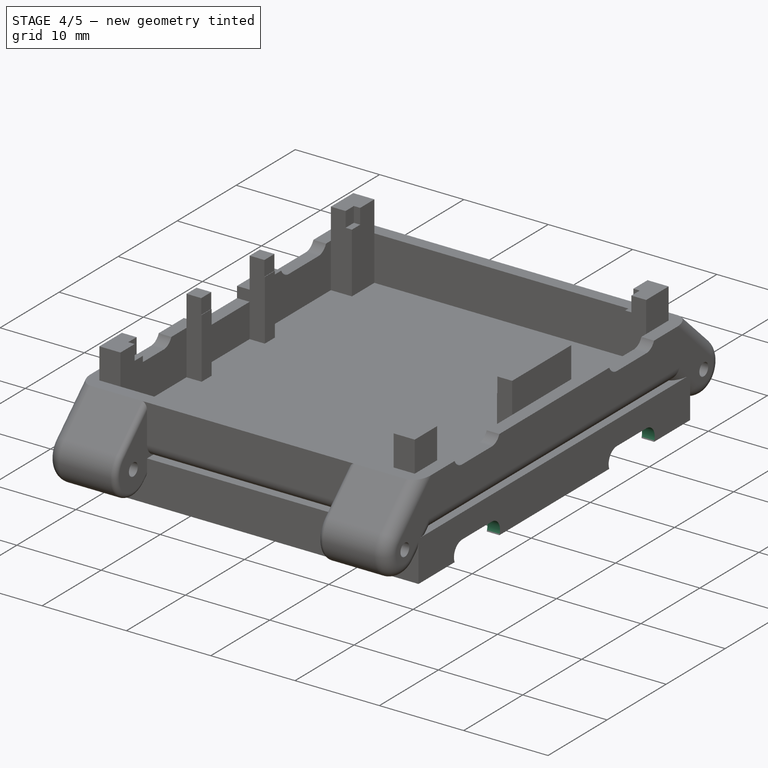
[diagram: stage 4 of 5 — iso view after this stage's code; geometry added in this stage tinted green]
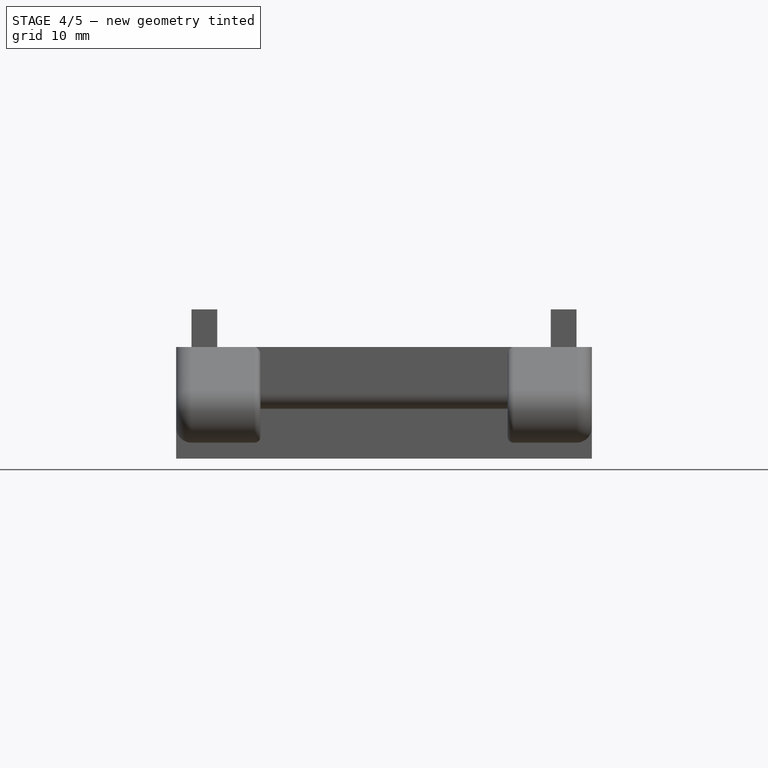
[diagram: stage 4 of 5 — front view after this stage's code; geometry added in this stage tinted green]
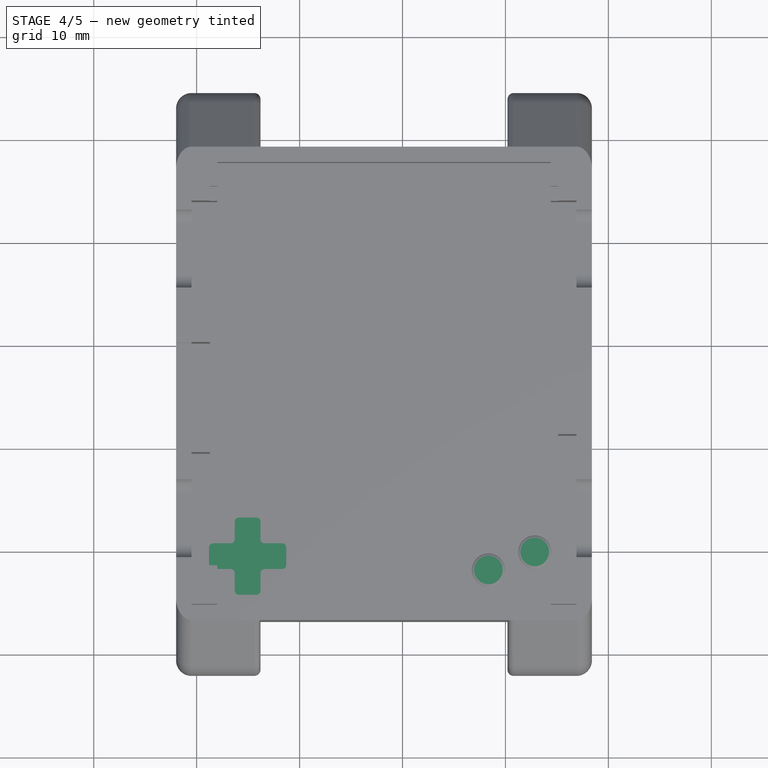
[diagram: stage 4 of 5 — top view after this stage's code; geometry added in this stage tinted green]
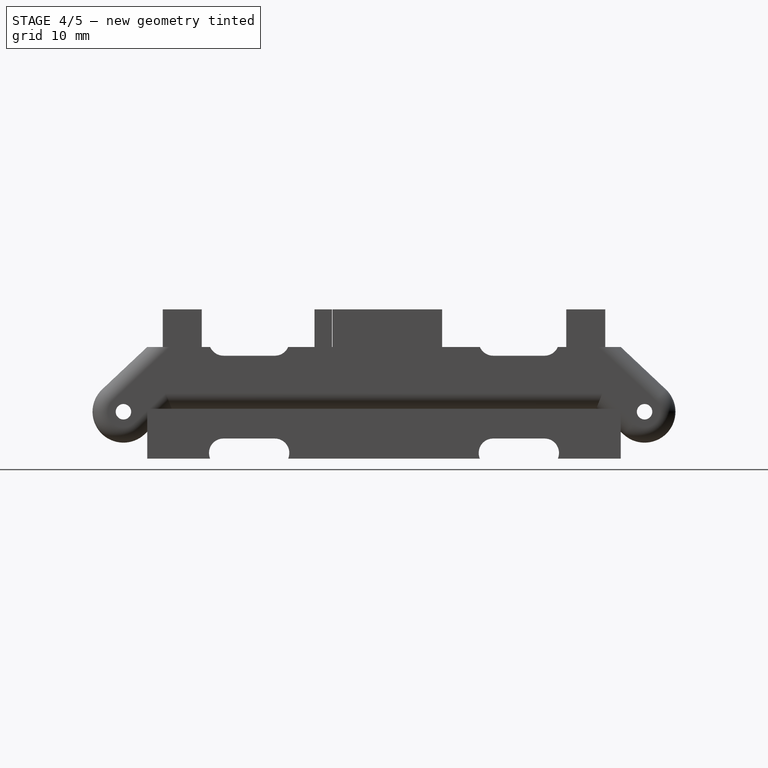
[diagram: stage 4 of 5 — right view after this stage's code; geometry added in this stage tinted green]
FEATURE [Sketcher::SketchObject] Sketch012
  ArcFitTolerance = 0
  AttachmentSupport = -> [Pocket004]
  FullyConstrained = true
  MakeInternals = false
  MapMode = 5
  Placement = pos=(-2,0,0) rot=(0.57735,-0.57735,-0.57735;2.0944rad)
  sketch-geometry (8):
    g0: ArcOfCircle CenterX=-41.8 CenterY=-4.3 CenterZ=0 NormalX=0 NormalY=0 NormalZ=1 AngleXU=0 Radius=1.4 StartAngle=1.5708 EndAngle=4.71239
    g1: ArcOfCircle CenterX=-36.8 CenterY=-4.3 CenterZ=0 NormalX=0 NormalY=0 NormalZ=1 AngleXU=0 Radius=1.4 StartAngle=4.71239 EndAngle=7.85398
    g2: LineSegment StartX=-41.8 StartY=-5.7 StartZ=0 EndX=-36.8 EndY=-5.7 EndZ=0
    g3: LineSegment StartX=-36.8 StartY=-2.9 StartZ=0 EndX=-41.8 EndY=-2.9 EndZ=0
    g4: ArcOfCircle CenterX=-15.6 CenterY=-4.3 CenterZ=0 NormalX=0 NormalY=0 NormalZ=1 AngleXU=0 Radius=1.4 StartAngle=1.5708 EndAngle=4.71239
    g5: ArcOfCircle CenterX=-10.6 CenterY=-4.3 CenterZ=0 NormalX=0 NormalY=0 NormalZ=1 AngleXU=0 Radius=1.4 StartAngle=4.71239 EndAngle=7.85398
    g6: LineSegment StartX=-15.6 StartY=-5.7 StartZ=0 EndX=-10.6 EndY=-5.7 EndZ=0
    g7: LineSegment StartX=-10.6 StartY=-2.9 StartZ=0 EndX=-15.6 EndY=-2.9 EndZ=0
  constraints (20):
    c: Tangent(g0,g2) = -1.5708
    c: Tangent(g2,g1) = -1.5708
    c: Tangent(g1,g3) = -1.5708
    c: Tangent(g3,g0) = -1.5708
    c: Equal(g0,g1)
    c: Horizontal(g2)
    c: Diameter(g1) = 2.8
    c: Distance(g0,g1) = 5
    c: Distance(g0,g-1) = 4.3
    c: Distance(g1,g-2) = 36.8
    c: Tangent(g4,g6) = -1.5708
    c: Tangent(g6,g5) = -1.5708
    c: Tangent(g5,g7) = -1.5708
    c: Tangent(g7,g4) = -1.5708
    c: Equal(g4,g5)
    c: Horizontal(g6)
    c: Distance(g5,g-2) = 10.6
    c: Diameter(g5) = 2.8
    c: Distance(g4,g5) = 5
    c: Distance(g5,g-1) = 4.3
FEATURE [PartDesign::Pocket] Pocket007  label="Button holes002"
  BaseFeature = -> Pocket004
  Direction = (1,0,0)
  Length = 2
  Length2 = 5
  Profile = -> Sketch012
  ReferenceAxis = -> Sketch012 [N_Axis]
  Suppressed = false
  Type = 0
FEATURE [Sketcher::SketchObject] Sketch013
  ArcFitTolerance = 0
  AttachmentSupport = -> [Pocket007]
  FullyConstrained = true
  MakeInternals = false
  MapMode = 5
  Placement = pos=(38.4,0,0) rot=(0.57735,0.57735,0.57735;2.0944rad)
  sketch-geometry (8):
    g0: ArcOfCircle CenterX=36.8 CenterY=-4.3 CenterZ=0 NormalX=0 NormalY=0 NormalZ=1 AngleXU=0 Radius=1.4 StartAngle=1.5708 EndAngle=4.71239
    g1: ArcOfCircle CenterX=41.8 CenterY=-4.3 CenterZ=0 NormalX=0 NormalY=0 NormalZ=1 AngleXU=0 Radius=1.4 StartAngle=4.71239 EndAngle=7.85398
    g2: LineSegment StartX=36.8 StartY=-5.7 StartZ=0 EndX=41.8 EndY=-5.7 EndZ=0
    g3: LineSegment StartX=41.8 StartY=-2.9 StartZ=0 EndX=36.8 EndY=-2.9 EndZ=0
    g4: ArcOfCircle CenterX=10.6 CenterY=-4.3 CenterZ=0 NormalX=0 NormalY=0 NormalZ=1 AngleXU=0 Radius=1.4 StartAngle=1.5708 EndAngle=4.71239
    g5: ArcOfCircle CenterX=15.6 CenterY=-4.3 CenterZ=0 NormalX=0 NormalY=0 NormalZ=1 AngleXU=0 Radius=1.4 StartAngle=4.71239 EndAngle=7.85398
    g6: LineSegment StartX=10.6 StartY=-5.7 StartZ=0 EndX=15.6 EndY=-5.7 EndZ=0
    g7: LineSegment StartX=15.6 StartY=-2.9 StartZ=0 EndX=10.6 EndY=-2.9 EndZ=0
  constraints (20):
    c: Tangent(g0,g2) = -1.5708
    c: Tangent(g2,g1) = -1.5708
    c: Tangent(g1,g3) = -1.5708
    c: Tangent(g3,g0) = -1.5708
    c: Equal(g0,g1)
    c: Horizontal(g2)
    c: Diameter(g1) = 2.8
    c: Distance(g1,g-1) = 4.3
    c: Distance(g1,g0) = 5
    c: Distance(g0,g-2) = 36.8
    c: Tangent(g4,g6) = -1.5708
    c: Tangent(g6,g5) = -1.5708
    c: Tangent(g5,g7) = -1.5708
    c: Tangent(g7,g4) = -1.5708
    c: Equal(g4,g5)
    c: Horizontal(g6)
    c: Diameter(g5) = 2.8
    c: Distance(g5,g-1) = 4.3
    c: Distance(g5,g4) = 5
    c: Distance(g4,g-2) = 10.6
FEATURE [PartDesign::Pocket] Pocket008  label="Button holes003"
  BaseFeature = -> Pocket007
  Direction = (-1,0,0)
  Length = 2
  Length2 = 5
  Profile = -> Sketch013
  ReferenceAxis = -> Sketch013 [N_Axis]
  Suppressed = false
  Type = 0
FEATURE [Sketcher::SketchObject] Sketch022
  ArcFitTolerance = 0
  AttachmentSupport = -> [Pocket015]
  FullyConstrained = true
  MakeInternals = false
  MapMode = 5
  Placement = pos=(-5.2e-15,1.7e-15,7.85) rot=(0,0,-1;1.5708rad)
  sketch-geometry (4):
    g0: Circle CenterX=-5.9 CenterY=0.75 CenterZ=0 NormalX=0 NormalY=0 NormalZ=1 AngleXU=0 Radius=0.5
    g1: Circle CenterX=-46.45 CenterY=0.75 CenterZ=0 NormalX=0 NormalY=0 NormalZ=1 AngleXU=0 Radius=0.5
    g2: Circle CenterX=-5.9 CenterY=35.75 CenterZ=0 NormalX=0 NormalY=0 NormalZ=1 AngleXU=0 Radius=0.5
    g3: Circle CenterX=-46.45 CenterY=35.75 CenterZ=0 NormalX=0 NormalY=0 NormalZ=1 AngleXU=0 Radius=0.5
  constraints (12):
    c: Diameter(g0) = 1
    c: Distance(g0,g-1) = 0.75
    c: Distance(g1,g-1) = 0.75
    c: Distance(g1,g0) = 40.55
    c: Equal(g1,g0)
    c: Equal(g2,g0)
    c: Equal(g2,g3)
    c: Distance(g2,g-2) = 5.9
    c: Distance(g0,g-2) = 5.9
    c: Distance(g2,g0) = 35
    c: Distance(g2,g3) = 40.55
    c: Distance(g3,g1) = 35
FEATURE [Sketcher::SketchObject] Sketch024
  ArcFitTolerance = 0
  FullyConstrained = true
  MakeInternals = false
  MapMode = 5
  sketch-geometry (14):
    g0: LineSegment StartX=1.2 StartY=10.75 StartZ=0 EndX=3.7 EndY=10.75 EndZ=0
    g1: LineSegment StartX=3.7 StartY=10.75 StartZ=0 EndX=3.7 EndY=13.25 EndZ=0
    g2: LineSegment StartX=3.7 StartY=13.25 StartZ=0 EndX=6.2 EndY=13.25 EndZ=0
    g3: LineSegment StartX=6.2 StartY=13.25 StartZ=0 EndX=6.2 EndY=10.75 EndZ=0
    g4: LineSegment StartX=6.2 StartY=10.75 StartZ=0 EndX=8.7 EndY=10.75 EndZ=0
    g5: LineSegment StartX=8.7 StartY=10.75 StartZ=0 EndX=8.7 EndY=8.25 EndZ=0
    g6: LineSegment StartX=8.7 StartY=8.25 StartZ=0 EndX=6.2 EndY=8.25 EndZ=0
    g7: LineSegment StartX=6.2 StartY=8.25 StartZ=0 EndX=6.2 EndY=5.75 EndZ=0
    g8: LineSegment StartX=6.2 StartY=5.75 StartZ=0 EndX=3.7 EndY=5.75 EndZ=0
    g9: LineSegment StartX=3.7 StartY=5.75 StartZ=0 EndX=3.7 EndY=8.25 EndZ=0
    g10: LineSegment StartX=3.7 StartY=8.25 StartZ=0 EndX=1.2 EndY=8.25 EndZ=0
    g11: LineSegment StartX=1.2 StartY=8.25 StartZ=0 EndX=1.2 EndY=10.75 EndZ=0
    g12: Circle CenterX=28.35 CenterY=8.15 CenterZ=0 NormalX=0 NormalY=0 NormalZ=1 AngleXU=0 Radius=1.75
    g13: Circle CenterX=32.85 CenterY=9.9 CenterZ=0 NormalX=0 NormalY=0 NormalZ=1 AngleXU=0 Radius=1.75
  constraints (42):
    c: Horizontal(g0)
    c: Coincident(g0,g1)
    c: Vertical(g1)
    c: Coincident(g1,g2)
    c: Horizontal(g2)
    c: Coincident(g2,g3)
    c: Vertical(g3)
    c: Coincident(g3,g4)
    c: Horizontal(g4)
    c: Coincident(g4,g5)
    c: Vertical(g5)
    c: Coincident(g5,g6)
    c: Horizontal(g6)
    c: Coincident(g6,g7)
    c: Vertical(g7)
    c: Coincident(g7,g8)
    c: Horizontal(g8)
    c: Coincident(g8,g9)
    c: Vertical(g9)
    c: Coincident(g9,g10)
    c: Horizontal(g10)
    c: Coincident(g10,g11)
    c: Coincident(g11,g0)
    c: Vertical(g11)
    c: Distance(g11) = 2.5
    c: Equal(g11,g5)
    c: Equal(g11,g2)
    c: Equal(g8,g11)
    c: DistanceX(g0) = 1.2
    c: DistanceY(g0) = 10.75
    c: Equal(g0,g11)
    c: Equal(g11,g10)
    c: Equal(g5,g4)
    c: Equal(g8,g9)
    c: Equal(g7,g8)
    c: Equal(g3,g2)
    c: DistanceX(g12) = 28.35
    c: DistanceY(g12) = 8.15
    c: Diameter(g12) = 3.5
    c: DistanceX(g13) = 32.85
    c: DistanceY(g13) = 9.9
    c: Diameter(g13) = 3.5
FEATURE [PartDesign::Pad] Pad006  label="top buttons"
  BaseFeature = -> Pocket008
  Direction = (0,0,1)
  Length = 0.86
  Length2 = 10
  Profile = -> Sketch024
  ReferenceAxis = -> Sketch024 [N_Axis]
  Suppressed = false
  Type = 0
FEATURE [PartDesign::Fillet] Fillet  label="dpad wall Fillet"
  Base = -> Pad006 [Edge99,Edge102,Edge104,Edge106,Edge100,Edge120,Edge118,Edge116,Edge114,Edge112,Edge110,Edge108]
  BaseFeature = -> Pad006
  Radius = 0.4
  SupportTransform = false
  Suppressed = false
  UseAllEdges = false
FEATURE [PartDesign::Fillet] Fillet001  label="buttons Fillet"
  Base = -> Fillet [Edge118,Edge116]
  BaseFeature = -> Fillet
  Radius = 0.5
  SupportTransform = false
  Suppressed = false
  UseAllEdges = false
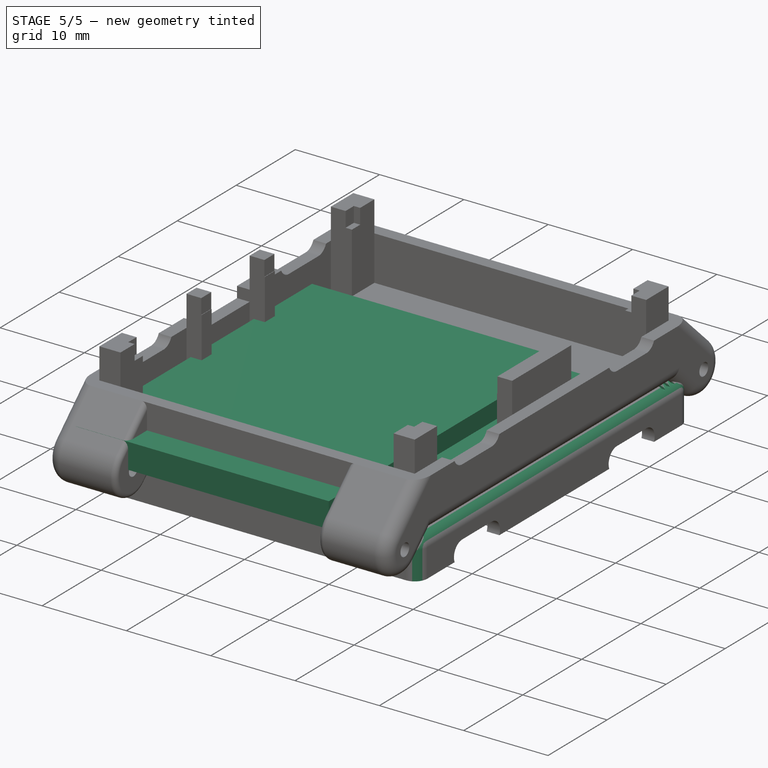
[diagram: stage 5 of 5 — iso view after this stage's code; geometry added in this stage tinted green]
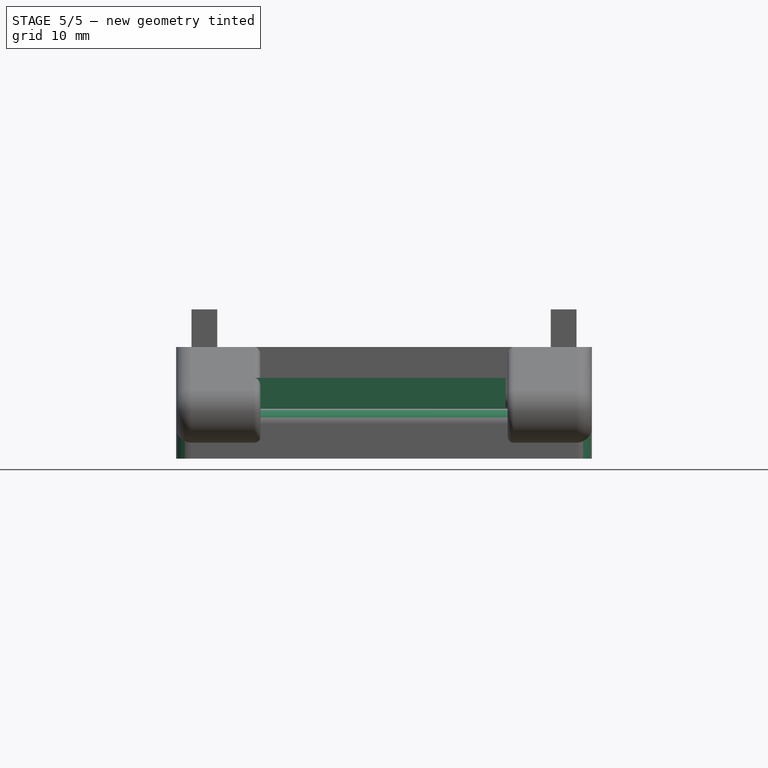
[diagram: stage 5 of 5 — front view after this stage's code; geometry added in this stage tinted green]
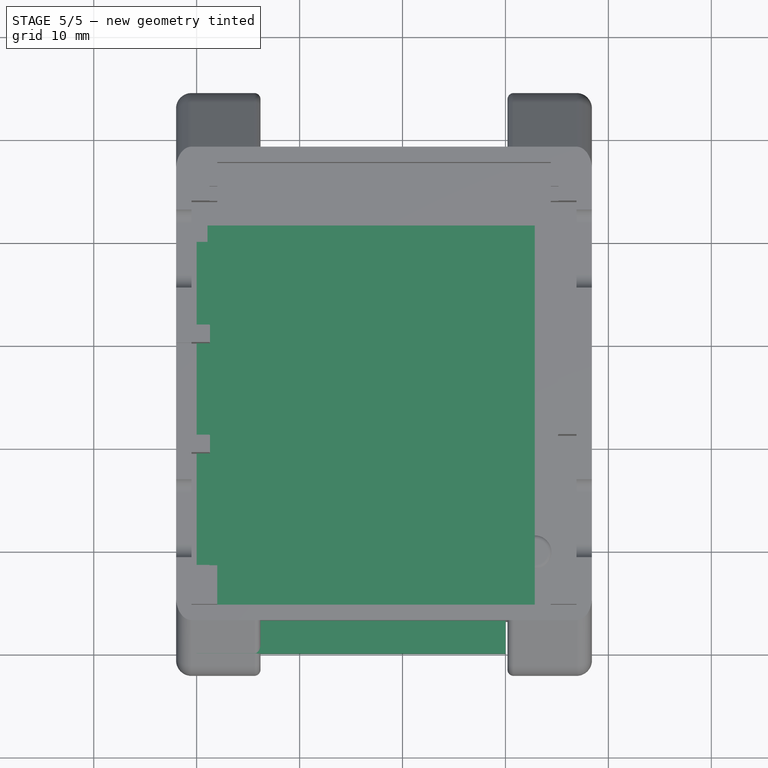
[diagram: stage 5 of 5 — top view after this stage's code; geometry added in this stage tinted green]
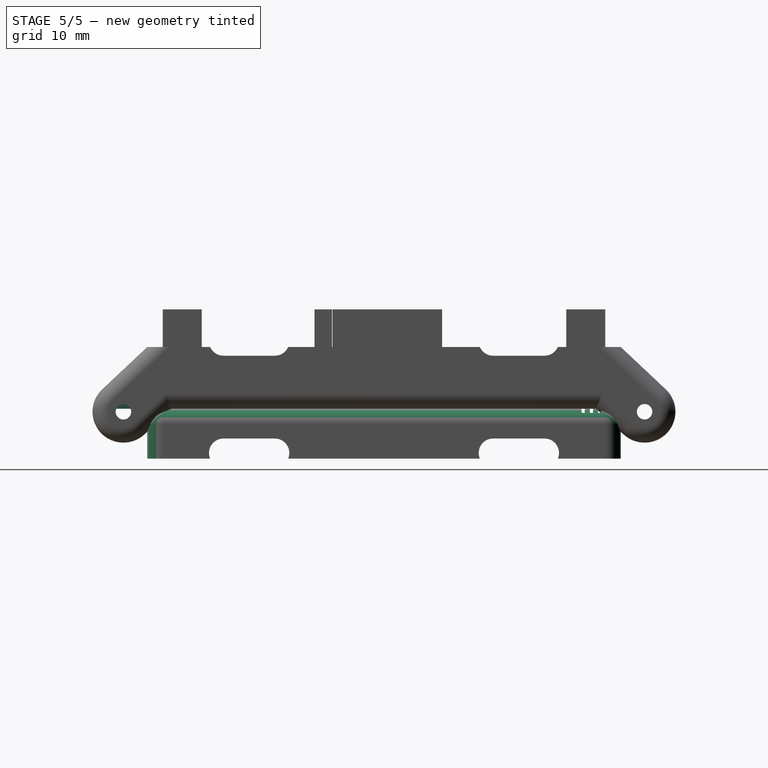
[diagram: stage 5 of 5 — right view after this stage's code; geometry added in this stage tinted green]
FEATURE [Sketcher::SketchObject] Sketch
  ArcFitTolerance = 0
  AttachmentSupport = -> [XY_Plane]
  FullyConstrained = true
  MakeInternals = false
  MapMode = 5
  sketch-geometry (4):
    g0: LineSegment StartX=0 StartY=0 StartZ=0 EndX=30 EndY=0 EndZ=0
    g1: LineSegment StartX=30 StartY=0 StartZ=0 EndX=30 EndY=40 EndZ=0
    g2: LineSegment StartX=30 StartY=40 StartZ=0 EndX=0 EndY=40 EndZ=0
    g3: LineSegment StartX=0 StartY=40 StartZ=0 EndX=0 EndY=0 EndZ=0
  constraints (11):
    c: Coincident(g0,g1)
    c: Coincident(g1,g2)
    c: Coincident(g2,g3)
    c: Coincident(g3,g0)
    c: Horizontal(g0)
    c: Horizontal(g2)
    c: Vertical(g1)
    c: Vertical(g3)
    c: Coincident(g0,g-1)
    c: Distance(g2) = 30
    c: Distance(g1) = 40
FEATURE [Part::Feature] Part__Feature  label="SOT_23"
  shape: bbox 2.5 x 3 x 1.2 mm, 76 faces (baked)
FEATURE [App::Part] SOT_23  label="SOT-23"
  Group = -> [Part__Feature]
  Origin = -> Origin001
  Placement = pos=(28.45,15.23,1.65) rot=(0,0,-1;1.5708rad)
FEATURE [Part::Feature] Part__Feature001  label="SOT_024"
  shape: bbox 2.5 x 3 x 1.2 mm, 76 faces (baked)
FEATURE [App::Part] SOT_024  label="SOT-024"
  Group = -> [Part__Feature001]
  Origin = -> Origin002
  Placement = pos=(7.81,35.31,1.65) rot=(0,0,1;3.14159rad)
FEATURE [Part::Feature] Part__Feature002  label="R_0402_1005Metric"
  shape: bbox 1 x 0.5 x 0.35 mm, 26 faces (baked)
FEATURE [App::Part] R_0402_1005Metric  label="R_0402_1005Metric001"
  Group = -> [Part__Feature002]
  Origin = -> Origin003
  Placement = pos=(16.97,34.19,1.65) rot=(0,0,1;3.14159rad)
FEATURE [Part::Feature] Part__Feature003  label="R_0402_1005Metric002"
  shape: bbox 1 x 0.5 x 0.35 mm, 26 faces (baked)
FEATURE [App::Part] R_0402_1005Metric001  label="R_0402_1005Metric003"
  Group = -> [Part__Feature003]
  Origin = -> Origin004
  Placement = pos=(30.8,28.28,1.65) rot=(0,0,1;1.5708rad)
FEATURE [Part::Feature] Part__Feature004  label="R_0402_1005Metric004"
  shape: bbox 1 x 0.5 x 0.35 mm, 26 faces (baked)
FEATURE [App::Part] R_0402_1005Metric002  label="R_0402_1005Metric005"
  Group = -> [Part__Feature004]
  Origin = -> Origin005
  Placement = pos=(29.32,17.4,1.65) rot=(0,0,1;3.14159rad)
FEATURE [Part::Feature] Part__Feature005  label="SOT_025"
  shape: bbox 2.5 x 3 x 1.2 mm, 76 faces (baked)
FEATURE [App::Part] SOT_025  label="SOT-025"
  Group = -> [Part__Feature005]
  Origin = -> Origin006
  Placement = pos=(28.1,9.03,1.65) rot=(0,0,-1;1.5708rad)
FEATURE [Part::Feature] Part__Feature006  label="L_1210_3225Metric"
  shape: bbox 3.2 x 2.5 x 2.5 mm, 28 faces (baked)
FEATURE [App::Part] L_1210_3225Metric  label="L_1210_3225Metric001"
  Group = -> [Part__Feature006]
  Origin = -> Origin007
  Placement = pos=(6.33,9.47,1.65) rot=(0,0,-1;1.5708rad)
FEATURE [Part::Feature] Part__Feature007  label="R_0402_1005Metric006"
  shape: bbox 1 x 0.5 x 0.35 mm, 26 faces (baked)
FEATURE [App::Part] R_0402_1005Metric003  label="R_0402_1005Metric007"
  Group = -> [Part__Feature007]
  Origin = -> Origin008
  Placement = pos=(7.76,32.76,1.65) rot=(0,0,-1;1.5708rad)
FEATURE [Part::Feature] Part__Feature008  label="D_SOD_123"
  shape: bbox 3.8 x 1.6 x 1.25 mm, 67 faces (baked)
FEATURE [App::Part] D_SOD_123  label="D_SOD-123"
  Group = -> [Part__Feature008]
  Origin = -> Origin009
  Placement = pos=(5.85,15.82,1.65) rot=(0,0,-1;1.5708rad)
FEATURE [Part::Feature] Part__Feature009  label="QFN-48-1EP_7x7mm_Pitch0.5mm"
  shape: bbox 7 x 7 x 0.77 mm, 302 faces (baked)
FEATURE [App::Part] QFN_48_1EP_7x7mm_P0_5mm_EP5_15x5_15mm  label="QFN-48-1EP_7x7mm_P0.5mm_EP5.15x5.15mm"
  Group = -> [Part__Feature009]
  Origin = -> Origin010
  Placement = pos=(17.7737,29.6588,1.65) rot=(0,0,-1;1.5708rad)
FEATURE [Part::Feature] Part__Feature010  label="SOT_363_SC_70_6"
  shape: bbox 2 x 2 x 1.05 mm, 118 faces (baked)
FEATURE [App::Part] SOT_363_SC_70_6  label="SOT-363_SC-70-6"
  Group = -> [Part__Feature010]
  Origin = -> Origin011
  Placement = pos=(21.31,21.47,1.65) rot=(0,0,1;3.14159rad)
FEATURE [Part::Feature] Part__Feature011  label="R_0402_1005Metric008"
  shape: bbox 1 x 0.5 x 0.35 mm, 26 faces (baked)
FEATURE [App::Part] R_0402_1005Metric004  label="R_0402_1005Metric009"
  Group = -> [Part__Feature011]
  Origin = -> Origin012
  Placement = pos=(4.55,6.34,1.65) rot=(0,0,1;1.5708rad)
FEATURE [Part::Feature] Part__Feature012  label="C_0805_2012Metric"
  shape: bbox 2 x 1.25 x 1.25 mm, 28 faces (baked)
FEATURE [App::Part] C_0805_2012Metric  label="C_0805_2012Metric001"
  Group = -> [Part__Feature012]
  Origin = -> Origin013
  Placement = pos=(17.82,35.53,1.65) rot=(0,0,1;3.14159rad)
FEATURE [Part::Feature] Part__Feature013  label="R_0402_1005Metric010"
  shape: bbox 1 x 0.5 x 0.35 mm, 26 faces (baked)
FEATURE [App::Part] R_0402_1005Metric005  label="R_0402_1005Metric011"
  Group = -> [Part__Feature013]
  Origin = -> Origin014
  Placement = pos=(33.24,28.28,1.65) rot=(0,0,-1;1.5708rad)
FEATURE [Part::Feature] Part__Feature014  label="R_0402_1005Metric012"
  shape: bbox 1 x 0.5 x 0.35 mm, 26 faces (baked)
FEATURE [App::Part] R_0402_1005Metric006  label="R_0402_1005Metric013"
  Group = -> [Part__Feature014]
  Origin = -> Origin015
  Placement = pos=(31.7,28.28,1.65) rot=(0,0,1;1.5708rad)
FEATURE [Part::Feature] Part__Feature015  label="R_0402_1005Metric014"
  shape: bbox 1 x 0.5 x 0.35 mm, 26 faces (baked)
FEATURE [App::Part] R_0402_1005Metric007  label="R_0402_1005Metric015"
  Group = -> [Part__Feature015]
  Origin = -> Origin016
  Placement = pos=(27.15,11.28,1.65) rot=(0,0,1;3.14159rad)
FEATURE [Part::Feature] Part__Feature016  label="D_SOD_124"
  shape: bbox 3.8 x 1.6 x 1.25 mm, 67 faces (baked)
FEATURE [App::Part] D_SOD_124  label="D_SOD-124"
  Group = -> [Part__Feature016]
  Origin = -> Origin017
  Placement = pos=(3.55,15.82,1.65) rot=(0,0,-1;1.5708rad)
FEATURE [Part::Feature] Part__Feature017  label="C_0805_2012Metric002"
  shape: bbox 2 x 1.25 x 1.25 mm, 28 faces (baked)
FEATURE [App::Part] C_0805_2012Metric001  label="C_0805_2012Metric003"
  Group = -> [Part__Feature017]
  Origin = -> Origin018
  Placement = pos=(5.83,12.59,1.65) rot=(0,0,1;0rad)
FEATURE [Part::Feature] Part__Feature018  label="R_0402_1005Metric016"
  shape: bbox 1 x 0.5 x 0.35 mm, 26 faces (baked)
FEATURE [App::Part] R_0402_1005Metric008  label="R_0402_1005Metric017"
  Group = -> [Part__Feature018]
  Origin = -> Origin019
  Placement = pos=(28.66,36.44,1.65) rot=(0,0,1;0rad)
FEATURE [Part::Feature] Part__Feature019  label="LED_0603_1608Metric"
  shape: bbox 1.6 x 0.8 x 1.1 mm, 50 faces (baked)
FEATURE [App::Part] LED_0603_1608Metric  label="LED_0603_1608Metric001"
  Group = -> [Part__Feature019]
  Origin = -> Origin020
  Placement = pos=(33.04,30.53,1.65) rot=(0,0,1;1.5708rad)
FEATURE [Part::Feature] Part__Feature020  label="C_0805_2012Metric004"
  shape: bbox 2 x 1.25 x 1.25 mm, 28 faces (baked)
FEATURE [App::Part] C_0805_2012Metric002  label="C_0805_2012Metric005"
  Group = -> [Part__Feature020]
  Origin = -> Origin021
  Placement = pos=(6.83,6.34,1.65) rot=(0,0,1;0rad)
FEATURE [Part::Feature] Part__Feature021  label="D_SOD_125"
  shape: bbox 3.8 x 1.6 x 1.25 mm, 67 faces (baked)
FEATURE [App::Part] D_SOD_125  label="D_SOD-125"
  Group = -> [Part__Feature021]
  Origin = -> Origin022
  Placement = pos=(27.27,19.28,1.65) rot=(0,0,1;1.5708rad)
FEATURE [Part::Feature] Part__Feature022  label="SOT_23_5"
  shape: bbox 2.8 x 2.9 x 1.55 mm, 109 faces (baked)
FEATURE [App::Part] SOT_23_5  label="SOT-23-5"
  Group = -> [Part__Feature022]
  Origin = -> Origin023
  Placement = pos=(32,15.93,1.65) rot=(0,0,-1;1.5708rad)
FEATURE [Part::Feature] Part__Feature023  label="R_0402_1005Metric018"
  shape: bbox 1 x 0.5 x 0.35 mm, 26 faces (baked)
FEATURE [App::Part] R_0402_1005Metric009  label="R_0402_1005Metric019"
  Group = -> [Part__Feature023]
  Origin = -> Origin024
  Placement = pos=(23.91,27.48,1.65) rot=(0,0,1;3.14159rad)
FEATURE [Part::Feature] Part__Feature024  label="R_0402_1005Metric020"
  shape: bbox 1 x 0.5 x 0.35 mm, 26 faces (baked)
FEATURE [App::Part] R_0402_1005Metric010  label="R_0402_1005Metric021"
  Group = -> [Part__Feature024]
  Origin = -> Origin025
  Placement = pos=(29.05,11.28,1.65) rot=(0,0,1;3.14159rad)
FEATURE [Part::Feature] Part__Feature025  label="R_0402_1005Metric022"
  shape: bbox 1 x 0.5 x 0.35 mm, 26 faces (baked)
FEATURE [App::Part] R_0402_1005Metric011  label="R_0402_1005Metric023"
  Group = -> [Part__Feature025]
  Origin = -> Origin026
  Placement = pos=(27.15,13.07,1.65) rot=(0,0,1;3.14159rad)
FEATURE [Part::Feature] Part__Feature026  label="Molex_53261_0271"
  shape: bbox 7.65 x 5.2 x 3.4 mm, 136 faces (baked)
FEATURE [App::Part] Molex_PicoBlade_53261_0271_1x02_1MP_P1_25mm_Horizontal  label="Molex_PicoBlade_53261-0271_1x02-1MP_P1.25mm_Horizontal"
  Group = -> [Part__Feature026]
  Origin = -> Origin027
  Placement = pos=(28.63,31.39,1.65) rot=(0,0,-1;1.5708rad)
FEATURE [Part::Feature] Part__Feature027  label="D_SOD_126"
  shape: bbox 3.8 x 1.6 x 1.25 mm, 67 faces (baked)
FEATURE [App::Part] D_SOD_126  label="D_SOD-126"
  Group = -> [Part__Feature027]
  Origin = -> Origin028
  Placement = pos=(1.25,15.82,1.65) rot=(0,0,1;1.5708rad)
FEATURE [Part::Feature] Part__Feature028  label="SOT_23_006"
  shape: bbox 2.8 x 2.9 x 1.55 mm, 109 faces (baked)
FEATURE [App::Part] SOT_23_006  label="SOT-23-006"
  Group = -> [Part__Feature028]
  Origin = -> Origin029
  Placement = pos=(24.66,19.88,1.65) rot=(0,0,-1;1.5708rad)
FEATURE [Part::Feature] Part__Feature029  label="R_0402_1005Metric024"
  shape: bbox 1 x 0.5 x 0.35 mm, 26 faces (baked)
FEATURE [App::Part] R_0402_1005Metric012  label="R_0402_1005Metric025"
  Group = -> [Part__Feature029]
  Origin = -> Origin030
  Placement = pos=(22.55,26.67,1.65) rot=(0,0,1;1.5708rad)
FEATURE [Part::Feature] Part__Feature030  label="R_0402_1005Metric026"
  shape: bbox 1 x 0.5 x 0.35 mm, 26 faces (baked)
FEATURE [App::Part] R_0402_1005Metric013  label="R_0402_1005Metric027"
  Group = -> [Part__Feature030]
  Origin = -> Origin031
  Placement = pos=(6.86,32.76,1.65) rot=(0,0,1;1.5708rad)
FEATURE [Part::Feature] Part__Feature031  label="D_SOD_123F"
  shape: bbox 3.5 x 1.6 x 1.1 mm, 27 faces (baked)
FEATURE [App::Part] D_SOD_123F  label="D_SOD-123F"
  Group = -> [Part__Feature031]
  Origin = -> Origin032
  Placement = pos=(5.11,34.705,1.65) rot=(0,0,-1;1.5708rad)
FEATURE [Part::Feature] Part__Feature032  label="USB_Micro-B_Molex_47346-0001"
  shape: bbox 7.977 x 5.418 x 2.937 mm, 484 faces (baked)
FEATURE [App::Part] USB_Micro_B_Molex_47346_0001  label="USB_Micro-B_Molex_47346-0002"
  Group = -> [Part__Feature032]
  Origin = -> Origin033
  Placement = pos=(31.38,22.43,1.65) rot=(0,0,1;1.5708rad)
FEATURE [Part::Feature] Part__Feature033  label="R_0402_1005Metric028"
  shape: bbox 1 x 0.5 x 0.35 mm, 26 faces (baked)
FEATURE [App::Part] R_0402_1005Metric014  label="R_0402_1005Metric029"
  Group = -> [Part__Feature033]
  Origin = -> Origin034
  Placement = pos=(9.56,32.76,1.65) rot=(0,0,-1;1.5708rad)
FEATURE [Part::Feature] Part__Feature034  label="R_0402_1005Metric030"
  shape: bbox 1 x 0.5 x 0.35 mm, 26 faces (baked)
FEATURE [App::Part] R_0402_1005Metric015  label="R_0402_1005Metric031"
  Group = -> [Part__Feature034]
  Origin = -> Origin035
  Placement = pos=(8.66,32.76,1.65) rot=(0,0,-1;1.5708rad)
FEATURE [Part::Feature] Part__Feature035  label="R_0402_1005Metric032"
  shape: bbox 1 x 0.5 x 0.35 mm, 26 faces (baked)
FEATURE [App::Part] R_0402_1005Metric016  label="R_0402_1005Metric033"
  Group = -> [Part__Feature035]
  Origin = -> Origin036
  Placement = pos=(9.56,31.16,1.65) rot=(0,0,-1;1.5708rad)
FEATURE [Part::Feature] Part__Feature036  label="MicroCrystal_CC7V_T1A"
  shape: bbox 3.296 x 1.5 x 0.89 mm, 28 faces (baked)
FEATURE [App::Part] Crystal_SMD_MicroCrystal_CC7V_T1A_2Pin_3_2x1_5mm  label="Crystal_SMD_MicroCrystal_CC7V-T1A-2Pin_3.2x1.5mm"
  Group = -> [Part__Feature036]
  Origin = -> Origin037
  Placement = pos=(11.63,35.91,1.65) rot=(0,0,1;0rad)
FEATURE [Part::Feature] Part__Feature037  label="LGA_12_2x2mm_P05mm"
  shape: bbox 2 x 2 x 1.025 mm, 68 faces (baked)
FEATURE [App::Part] LGA_12_2x2mm_P0_5mm  label="LGA-12_2x2mm_P0.5mm"
  Group = -> [Part__Feature037]
  Origin = -> Origin038
  Placement = pos=(12.27,25.95,1.65) rot=(0,0,1;0rad)
FEATURE [Part::Feature] Part__Feature038  label="R_0402_1005Metric034"
  shape: bbox 1 x 0.5 x 0.35 mm, 26 faces (baked)
FEATURE [App::Part] R_0402_1005Metric017  label="R_0402_1005Metric035"
  Group = -> [Part__Feature038]
  Origin = -> Origin039
  Placement = pos=(8.66,31.16,1.65) rot=(0,0,-1;1.5708rad)
FEATURE [Part::Feature] Part__Feature039  label="R_0402_1005Metric036"
  shape: bbox 1 x 0.5 x 0.35 mm, 26 faces (baked)
FEATURE [App::Part] R_0402_1005Metric018  label="R_0402_1005Metric037"
  Group = -> [Part__Feature039]
  Origin = -> Origin040
  Placement = pos=(29.05,13.07,1.65) rot=(0,0,1;0rad)
FEATURE [Part::Feature] Part__Feature040  label="R_0402_1005Metric038"
  shape: bbox 1 x 0.5 x 0.35 mm, 26 faces (baked)
FEATURE [App::Part] R_0402_1005Metric019  label="R_0402_1005Metric039"
  Group = -> [Part__Feature040]
  Origin = -> Origin041
  Placement = pos=(16.06,24.71,1.65) rot=(0,0,1;1.5708rad)
FEATURE [Part::Feature] Part__Feature041  label="_autosave-Watchy_PCB"
  Placement = pos=(0.01,0,0) rot=(0,0,1;0rad)
  shape: bbox 33.8 x 45.96 x 1.6 mm, 50 faces (baked)
FEATURE [App::Part] Watchy_1  label="Watchy 1"
  Group = -> [SOT_23,SOT_024,R_0402_1005Metric,R_0402_1005Metric001,R_0402_1005Metric002,SOT_025,L_1210_3225Metric,R_0402_1005Metric003,D_SOD_123,QFN_48_1EP_7x7mm_P0_5mm_EP5_15x5_15mm,SOT_363_SC_70_6,R_0402_1005Metric004,C_0805_2012Metric,R_0402_1005Metric005,R_0402_1005Metric006,R_0402_1005Metric007,D_SOD_124,C_0805_2012Metric001,R_0402_1005Metric008,LED_0603_1608Metric,C_0805_2012Metric002,D_SOD_125,SOT_23_5,+19 more]
  Origin = -> Origin042
  Placement = pos=(34,0,0.9) rot=(0,1,0;3.14159rad)
FEATURE [PartDesign::Pad] Pad
  Direction = (0,0,1)
  Length = 3
  Length2 = 10
  Profile = -> Sketch
  ReferenceAxis = -> Sketch [N_Axis]
  Suppressed = false
  Type = 0
FEATURE [PartDesign::Body] Body  label="Battery"
  AllowCompound = false
  Group = -> [Sketch,Pad]
  Origin = -> Origin
  Placement = pos=(1.94,3.3,-7.2) rot=(0,0,1;0rad)
  Tip = -> Pad
FEATURE [Sketcher::SketchObject] Sketch001
  ArcFitTolerance = 0
  AttachmentSupport = -> [XY_Plane043]
  FullyConstrained = true
  MakeInternals = false
  MapMode = 5
  sketch-geometry (4):
    g0: LineSegment StartX=1.05 StartY=4.32 StartZ=0 EndX=32.85 EndY=4.32 EndZ=0
    g1: LineSegment StartX=32.85 StartY=4.32 StartZ=0 EndX=32.85 EndY=41.62 EndZ=0
    g2: LineSegment StartX=32.85 StartY=41.62 StartZ=0 EndX=1.05 EndY=41.62 EndZ=0
    g3: LineSegment StartX=1.05 StartY=41.62 StartZ=0 EndX=1.05 EndY=4.32 EndZ=0
  constraints (12):
    c: Coincident(g0,g1)
    c: Coincident(g1,g2)
    c: Coincident(g2,g3)
    c: Coincident(g3,g0)
    c: Horizontal(g0)
    c: Horizontal(g2)
    c: Vertical(g1)
    c: Vertical(g3)
    c: Distance(g2) = 31.8
    c: Distance(g1) = 37.3
    c: Distance(g0,g-1) = 4.32
    c: Distance(g0,g-2) = 1.05
FEATURE [PartDesign::Pad] Pad001
  Direction = (0,0,1)
  Length = 0.95
  Length2 = 10
  Profile = -> Sketch001
  ReferenceAxis = -> Sketch001 [N_Axis]
  Suppressed = false
  Type = 0
FEATURE [PartDesign::Fillet] Fillet002  label="dpad top Fillet"
  Base = -> Fillet001 [Edge61,Edge69,Edge77,Edge85,Edge90,Edge83,Edge75,Edge67,Edge59,Edge51,Edge45,Edge53]
  BaseFeature = -> Fillet001
  Radius = 0.2
  SupportTransform = false
  Suppressed = false
  UseAllEdges = false
FEATURE [PartDesign::Fillet] Fillet003  label="Case Fillet"
  Base = -> Fillet002 [Edge115,Edge131,Edge132,Edge33,Edge35,Edge36,Edge34,Edge116]
  BaseFeature = -> Fillet002
  Radius = 1.5
  SupportTransform = false
  Suppressed = false
  UseAllEdges = false
FEATURE [PartDesign::Pocket] Pocket016  label="Groooves"
  BaseFeature = -> Fillet003
  Direction = (0,0,-1)
  Length = 0.4
  Length2 = 5
  Profile = -> Sketch014
  ReferenceAxis = -> Sketch014 [N_Axis]
  Suppressed = false
  Type = 0
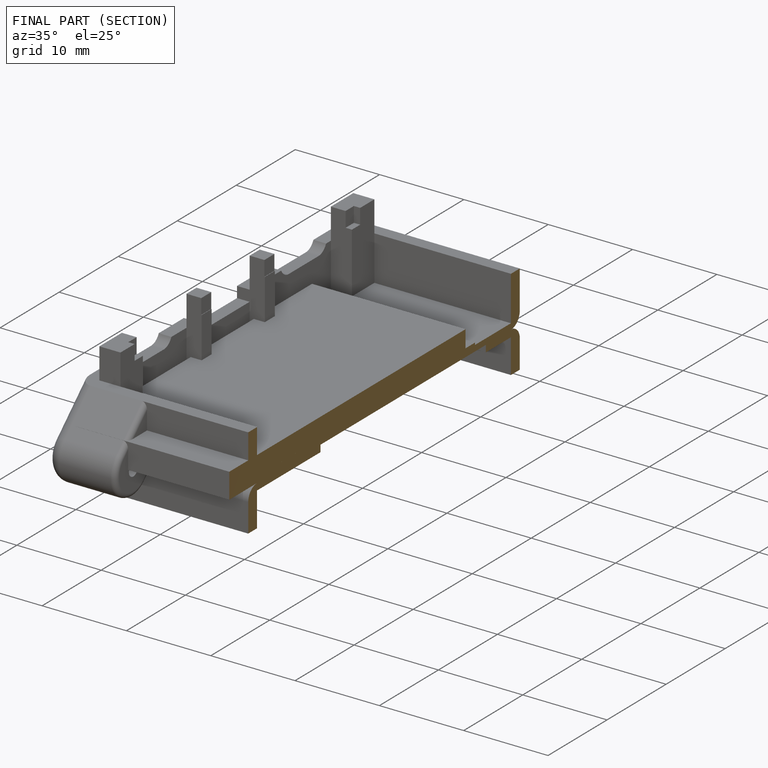
[diagram: finished part — half-section view (interior)]
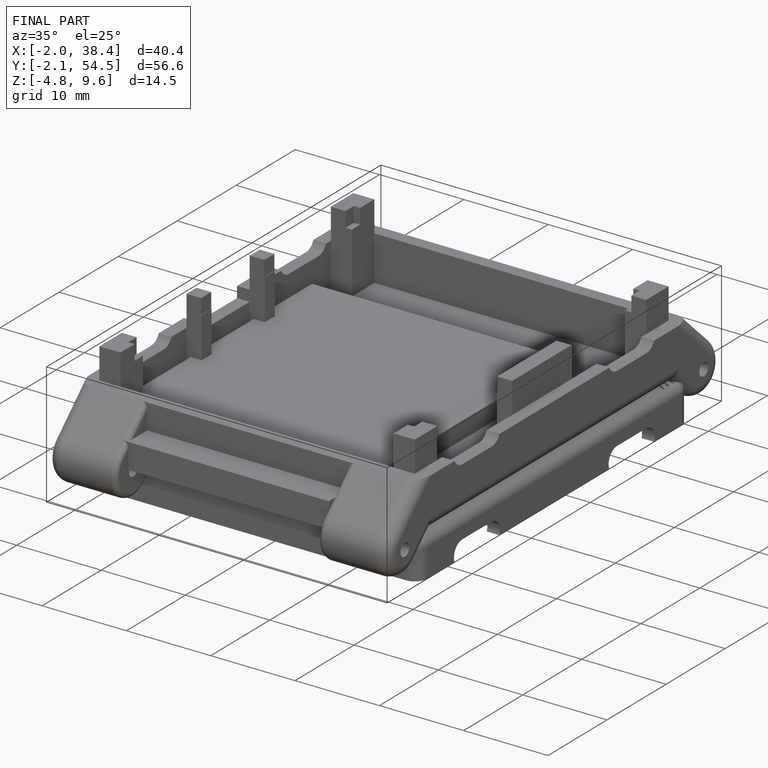
[diagram: finished part — iso view with bounding-box wireframe]
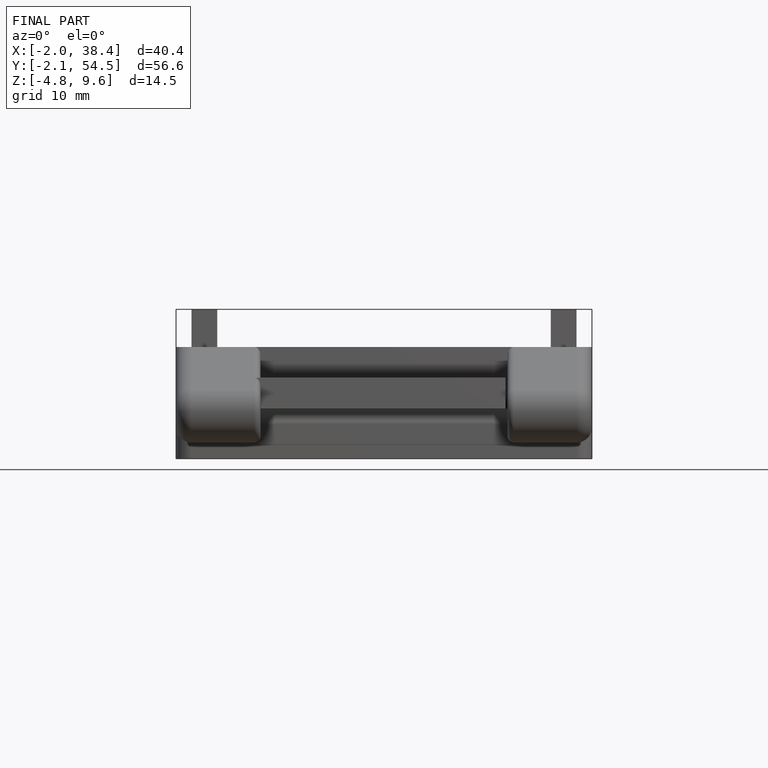
[diagram: finished part — front view with bounding-box wireframe]
